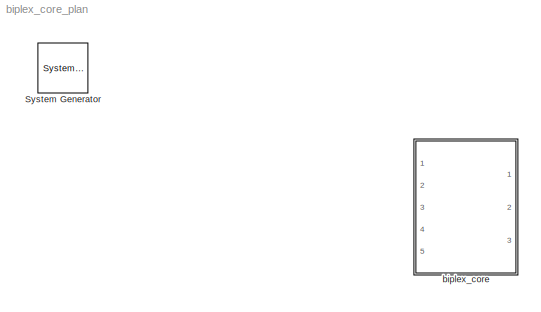
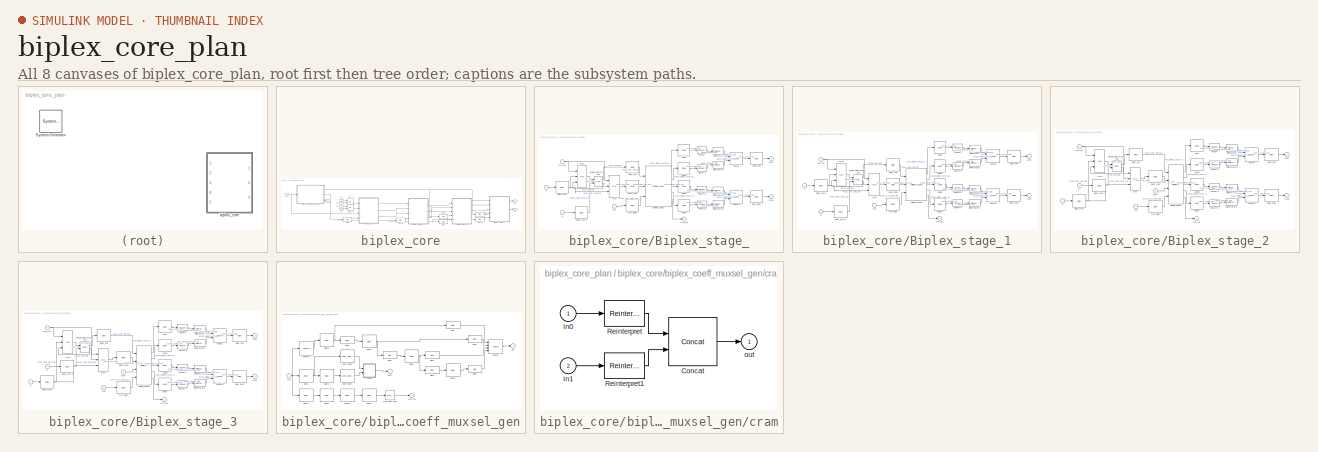
[diagram: thumbnail index - all 8 canvases of the model, root first then tree order]
MODEL biplex_core_plan
KIND model
BLOCK [Reference]  System Generator  REF=xbsIndex_r4/ System Generator
  AttributesFormatString = System\\nGenerator
  FunctionWithSeparateData = off
  GeneratePreprocessorConditionals = off
  Ports = []
  RTWMemSecDataConstants = Inherit from model
  RTWMemSecDataInternal = Inherit from model
  RTWMemSecDataParameters = Inherit from model
  RTWMemSecFuncExecute = Inherit from model
  RTWMemSecFuncInitTerm = Inherit from model
  SID = 1
  ShowPortLabels = FromPortIcon
  SourceBlock = xbsIndex_r4/ System Generator
  SourceType = Xilinx System Generator Block
  SystemSampleTime = -1
  Tag = genX
  UserData = DataTag0
  UserDataPersistent = on
  block_type = sysgen
  clock_wrapper = Clock Enables
  core_generation = According to Block Masks
  dbl_ovrd = According to Block Masks
  dcm_input_clock_period = 10
  deprecated_control = off
  directory = ./netlist
  eval_field = 0
  has_advanced_control = 0
  incr_netlist = off
  infoedit = System Generator
  package = ff1156
  part = xc6vsx315t
  run_coregen = off
  sg_icon_stat = 50,50,0,0,token,white,0,58c5b5770fe5f7c311f53dbc6e73f0f6,right,,[ ],[ ]
  sg_mask_display = fprintf('','COMMENT: begin icon graphics');\npatch([0 50 50 0 0 ],[0 0 50 50 0 ],[1 1 1 ]);\npatch([1.6375 16.81 27.31 37.81 48.31 27.31 12.1375 1.6375 ],[36.655 36.655 47.155 36.655 47.155 47.155 47.155 36.655 ],[0.933333 0.203922 0.141176 ]);\npatch([12.1375 27.31 16.81 1.6375 12.1375 ],[26.155 26.155 36.655 36.655 26.155 ],[0.698039 0.0313725 0.219608 ]);\npatch([1.6375 16.81 27.31 12.1375 1.63...<+335ch>
  sggui_pos = -1,-1,-1,-1
  simulink_period = 1
  speed = -3
  synthesis_tool = XST
  sysclk_period = 10
  testbench = off
  trim_vbits = Everywhere in SubSystem
  xilinxfamily = Virtex6
BLOCK [SubSystem] biplex_core
  FunctionWithSeparateData = off
  MaskHideContents = off
  MinAlgLoopOccurrences = off
  Opaque = off
  Ports = [5, 3]
  PropExecContextOutsideSubsystem = off
  RTWSystemCode = Auto
  RequestExecContextInheritance = off
  SID = 290
BLOCK [SubSystem] biplex_core/Biplex_stage_
  FunctionWithSeparateData = off
  MaskCallbackString = ||||||||
  MaskEnableString = on,on,on,on,on,on,on,on,on
  MaskHideContents = off
  MaskIconFrame = on
  MaskIconOpaque = on
  MaskIconRotate = none
  MaskIconUnits = autoscale
  MaskInitialization = config.source=str2func('biplex_stage_n_draw');\nconfig.toplevel=gcb;\nconfig.debug=0;\nconfig.depend={'biplex_stage_n_draw.m'};\nxBlock(config,{FFTSize, FFTStage, input_bit_width, coeff_bit_width, output_bit_width, delays_bram, bram_latency, shift, delay_arr});  <repeated x4 — deduplicated; at blocks: Biplex_stage_, Biplex_stage_1, Biplex_stage_2, Biplex_stage_3>
  MaskPortRotate = default
  MaskPromptString = FFT Size|FFT Stage|Input Bit Width|Coefficient Bit Width|Output Bit Width|Delays in BRAM|BRAM latency|Downshift in this stage? (0 or 1)|In-Stage Delay Array
  MaskStyleString = edit,edit,edit,edit,edit,edit,edit,edit,edit
  MaskToolTipString = on,on,on,on,on,on,on,on,on
  MaskTunableValueString = on,on,on,on,on,on,on,on,on
  MaskValueString = 4|1|18|18|18|1|2|0|[0,1,0]
  MaskVariables = FFTSize=@1;FFTStage=@2;input_bit_width=@3;coeff_bit_width=@4;output_bit_width=@5;delays_bram=@6;bram_latency=@7;shift=@8;delay_arr=@9;
  MaskVisibilityString = on,on,on,on,on,on,on,on,on
  MinAlgLoopOccurrences = off
  Opaque = off
  Ports = [4, 3]
  PropExecContextOutsideSubsystem = off
  RTWSystemCode = Auto
  RequestExecContextInheritance = off
  SID = 4
  UserData = DataTag1
  UserDataPersistent = on
BLOCK [Reference] biplex_core/Biplex_stage_/Concat  REF=xbsIndex_r4/Concat
  Ports = [2, 1]
  SID = 4:1238
  SourceBlock = xbsIndex_r4/Concat
  SourceType = Xilinx Bus Concatenator Block
  block_type = concat
  dbl_ovrd = off
  has_advanced_control = 0
  infoedit = Concatenates two or more inputs.  Output will be cast to an unsigned value with the binary point at zero.
  num_inputs = 2
  sg_icon_stat = 60,60,2,1,white,blue,0,16398980,right,,[ ],[ ]
  sg_mask_display = fprintf('','COMMENT: begin icon graphics');\npatch([0 60 60 0 0 ],[0 0 60 60 0 ],[0.77 0.82 0.91 ]);\nplot([0 60 60 0 0 ],[0 0 60 60 0 ]);\npatch([12.2 23.76 31.76 39.76 47.76 31.76 20.2 12.2 ],[38.88 38.88 46.88 38.88 46.88 46.88 46.88 38.88 ],[1 1 1 ]);\npatch([20.2 31.76 23.76 12.2 20.2 ],[30.88 30.88 38.88 38.88 30.88 ],[0.931 0.946 0.973 ]);\npatch([12.2 23.76 31.76 20.2 12.2 ],[22.88 22.88 3...<+417ch>  <repeated x9 — deduplicated; at blocks: Concat, Concat1>
  sggui_pos = -1,-1,-1,-1
BLOCK [Reference] biplex_core/Biplex_stage_/Concat1  REF=xbsIndex_r4/Concat
  Ports = [2, 1]
  SID = 4:1239
  SourceBlock = xbsIndex_r4/Concat
  SourceType = Xilinx Bus Concatenator Block
  block_type = concat
  dbl_ovrd = off
  has_advanced_control = 0
  infoedit = Concatenates two or more inputs.  Output will be cast to an unsigned value with the binary point at zero.
  num_inputs = 2
  sg_icon_stat = 60,60,2,1,white,blue,0,16398980,right,,[ ],[ ]
  sggui_pos = -1,-1,-1,-1
BLOCK [Reference] biplex_core/Biplex_stage_/Convert  REF=xbsIndex_r4/Convert
  Ports = [1, 1]
  SID = 4:1240
  SourceBlock = xbsIndex_r4/Convert
  SourceType = Xilinx Type Converter Block
  arith_type = Signed  (2's comp)
  bin_pt = 17
  block_type = convert
  dbl_ovrd = off
  en = off
  has_advanced_control = 0
  infoedit = Hardware notes: rounding and saturating require hardware resources; truncating and wrapping do not.
  latency = 0
  n_bits = 18
  overflow = Wrap
  pipeline = off
  quantization = Truncate
  sg_icon_stat = 45,32,1,1,white,blue,0,edca21da,right,,[ ],[ ]
  sg_mask_display = fprintf('','COMMENT: begin icon graphics');\npatch([0 45 45 0 0 ],[0 0 32 32 0 ],[0.77 0.82 0.91 ]);\nplot([0 45 45 0 0 ],[0 0 32 32 0 ]);\npatch([13.1 18.88 22.88 26.88 30.88 22.88 17.1 13.1 ],[20.44 20.44 24.44 20.44 24.44 24.44 24.44 20.44 ],[1 1 1 ]);\npatch([17.1 22.88 18.88 13.1 17.1 ],[16.44 16.44 20.44 20.44 16.44 ],[0.931 0.946 0.973 ]);\npatch([13.1 18.88 22.88 17.1 13.1 ],[12.44 12.44 1...<+314ch>  <repeated x8 — deduplicated; at blocks: Convert, Convert1>
  sggui_pos = -1,-1,-1,-1
  xl_area = [0,0,0,0,0,0,0]
  xl_use_area = off
BLOCK [Reference] biplex_core/Biplex_stage_/Convert1  REF=xbsIndex_r4/Convert
  Ports = [1, 1]
  SID = 4:1241
  SourceBlock = xbsIndex_r4/Convert
  SourceType = Xilinx Type Converter Block
  arith_type = Signed  (2's comp)
  bin_pt = 17
  block_type = convert
  dbl_ovrd = off
  en = off
  has_advanced_control = 0
  infoedit = Hardware notes: rounding and saturating require hardware resources; truncating and wrapping do not.
  latency = 0
  n_bits = 18
  overflow = Wrap
  pipeline = off
  quantization = Truncate
  sg_icon_stat = 45,32,1,1,white,blue,0,edca21da,right,,[ ],[ ]
  sggui_pos = -1,-1,-1,-1
  xl_area = [0,0,0,0,0,0,0]
  xl_use_area = off
BLOCK [Reference] biplex_core/Biplex_stage_/Convert2  REF=xbsIndex_r4/Convert
  Ports = [1, 1]
  SID = 4:1242
  SourceBlock = xbsIndex_r4/Convert
  SourceType = Xilinx Type Converter Block
  arith_type = Signed  (2's comp)
  bin_pt = 17
  block_type = convert
  dbl_ovrd = off
  en = off
  has_advanced_control = 0
  infoedit = Hardware notes: rounding and saturating require hardware resources; truncating and wrapping do not.
  latency = 0
  n_bits = 18
  overflow = Wrap
  pipeline = off
  quantization = Truncate
  sg_icon_stat = 45,30,1,1,white,blue,0,edca21da,right,,[ ],[ ]
  sg_mask_display = fprintf('','COMMENT: begin icon graphics');\npatch([0 45 45 0 0 ],[0 0 30 30 0 ],[0.77 0.82 0.91 ]);\nplot([0 45 45 0 0 ],[0 0 30 30 0 ]);\npatch([13.1 18.88 22.88 26.88 30.88 22.88 17.1 13.1 ],[19.44 19.44 23.44 19.44 23.44 23.44 23.44 19.44 ],[1 1 1 ]);\npatch([17.1 22.88 18.88 13.1 17.1 ],[15.44 15.44 19.44 19.44 15.44 ],[0.931 0.946 0.973 ]);\npatch([13.1 18.88 22.88 17.1 13.1 ],[11.44 11.44 1...<+314ch>  <repeated x8 — deduplicated; at blocks: Convert2, Convert3>
  sggui_pos = -1,-1,-1,-1
  xl_area = [0,0,0,0,0,0,0]
  xl_use_area = off
BLOCK [Reference] biplex_core/Biplex_stage_/Convert3  REF=xbsIndex_r4/Convert
  Ports = [1, 1]
  SID = 4:1243
  SourceBlock = xbsIndex_r4/Convert
  SourceType = Xilinx Type Converter Block
  arith_type = Signed  (2's comp)
  bin_pt = 17
  block_type = convert
  dbl_ovrd = off
  en = off
  has_advanced_control = 0
  infoedit = Hardware notes: rounding and saturating require hardware resources; truncating and wrapping do not.
  latency = 0
  n_bits = 18
  overflow = Wrap
  pipeline = off
  quantization = Truncate
  sg_icon_stat = 45,30,1,1,white,blue,0,edca21da,right,,[ ],[ ]
  sggui_pos = -1,-1,-1,-1
  xl_area = [0,0,0,0,0,0,0]
  xl_use_area = off
BLOCK [Reference] biplex_core/Biplex_stage_/Mux  REF=xbsIndex_r4/Mux
  Ports = [3, 1]
  SID = 4:1244
  SourceBlock = xbsIndex_r4/Mux
  SourceType = Xilinx Bus Multiplexer Block
  arith_type = Signed  (2's comp)
  bin_pt = 2
  block_type = mux
  dbl_ovrd = off
  en = off
  has_advanced_control = 0
  inputs = 2
  latency = 0
  n_bits = 8
  overflow = Wrap
  precision = Full
  quantization = Truncate
  sg_icon_stat = 50,104,3,1,white,blue,3,eb98d690,right,,[ ],[ ]
  sg_mask_display = fprintf('','COMMENT: begin icon graphics');\npatch([0 50 50 0 0 ],[0 14.8571 89.1429 104 0 ],[0.77 0.82 0.91 ]);\nplot([0 50 50 0 0 ],[0 14.8571 89.1429 104 0 ]);\npatch([9.425 19.54 26.54 33.54 40.54 26.54 16.425 9.425 ],[59.77 59.77 66.77 59.77 66.77 66.77 66.77 59.77 ],[1 1 1 ]);\npatch([16.425 26.54 19.54 9.425 16.425 ],[52.77 52.77 59.77 59.77 52.77 ],[0.931 0.946 0.973 ]);\npatch([9.425 19.5...<+493ch>
  sggui_pos = -1,-1,-1,-1
  xl_area = [0,0,0,0,0,0,0]
  xl_use_area = off
BLOCK [Reference] biplex_core/Biplex_stage_/Mux1  REF=xbsIndex_r4/Mux
  Ports = [3, 1]
  SID = 4:1245
  SourceBlock = xbsIndex_r4/Mux
  SourceType = Xilinx Bus Multiplexer Block
  arith_type = Signed  (2's comp)
  bin_pt = 2
  block_type = mux
  dbl_ovrd = off
  en = off
  has_advanced_control = 0
  inputs = 2
  latency = 0
  n_bits = 8
  overflow = Wrap
  precision = Full
  quantization = Truncate
  sg_icon_stat = 45,104,3,1,white,blue,3,eb98d690,right,,[ ],[ ]
  sg_mask_display = fprintf('','COMMENT: begin icon graphics');\npatch([0 45 45 0 0 ],[0 14.8571 89.1429 104 0 ],[0.77 0.82 0.91 ]);\nplot([0 45 45 0 0 ],[0 14.8571 89.1429 104 0 ]);\npatch([8.65 17.32 23.32 29.32 35.32 23.32 14.65 8.65 ],[58.66 58.66 64.66 58.66 64.66 64.66 64.66 58.66 ],[1 1 1 ]);\npatch([14.65 23.32 17.32 8.65 14.65 ],[52.66 52.66 58.66 58.66 52.66 ],[0.931 0.946 0.973 ]);\npatch([8.65 17.32 23.32...<+481ch>  <repeated x6 — deduplicated; at blocks: Mux1, Mux>
  sggui_pos = -1,-1,-1,-1
  xl_area = [0,0,0,0,0,0,0]
  xl_use_area = off
BLOCK [Reference] biplex_core/Biplex_stage_/Reinterpret  REF=xbsIndex_r4/Reinterpret
  Ports = [1, 1]
  SID = 4:1246
  SourceBlock = xbsIndex_r4/Reinterpret
  SourceType = Xilinx Type Reinterpreter Block
  arith_type = Unsigned
  bin_pt = 0
  block_type = reinterpret
  force_arith_type = off
  force_bin_pt = off
  has_advanced_control = 0
  infoedit = Changes signal type without altering the binary representation.   You can changed the signal between signed and unsigned, and relocate the binary point.<br><br>Hardware notes: In hardware this block costs nothing.<br><br>Example:  Suppose the input is 6 bits wide, signed, with 2 fractional bits, and the output is forced to unsigned with 0 fractional bits.  Then an input of -2.0 (1110.00 in binary ...<+59ch>  <repeated x18 — deduplicated; at blocks: Reinterpret, Reinterpret1, Reinterpret2, Reinterpret3>
  sg_icon_stat = 50,32,1,1,white,blue,0,6b04d0b0,right,,[ ],[ ]
  sg_mask_display = fprintf('','COMMENT: begin icon graphics');\npatch([0 50 50 0 0 ],[0 0 32 32 0 ],[0.77 0.82 0.91 ]);\nplot([0 50 50 0 0 ],[0 0 32 32 0 ]);\npatch([16.1 21.88 25.88 29.88 33.88 25.88 20.1 16.1 ],[20.44 20.44 24.44 20.44 24.44 24.44 24.44 20.44 ],[1 1 1 ]);\npatch([20.1 25.88 21.88 16.1 20.1 ],[16.44 16.44 20.44 20.44 16.44 ],[0.931 0.946 0.973 ]);\npatch([16.1 21.88 25.88 20.1 16.1 ],[12.44 12.44 1...<+306ch>  <repeated x18 — deduplicated; at blocks: Reinterpret, Reinterpret1, Reinterpret2, Reinterpret3>
  sggui_pos = -1,-1,-1,-1
BLOCK [Reference] biplex_core/Biplex_stage_/Reinterpret1  REF=xbsIndex_r4/Reinterpret
  Ports = [1, 1]
  SID = 4:1247
  SourceBlock = xbsIndex_r4/Reinterpret
  SourceType = Xilinx Type Reinterpreter Block
  arith_type = Unsigned
  bin_pt = 0
  block_type = reinterpret
  force_arith_type = off
  force_bin_pt = off
  has_advanced_control = 0
  sg_icon_stat = 50,32,1,1,white,blue,0,6b04d0b0,right,,[ ],[ ]
  sggui_pos = -1,-1,-1,-1
BLOCK [Reference] biplex_core/Biplex_stage_/Reinterpret2  REF=xbsIndex_r4/Reinterpret
  Ports = [1, 1]
  SID = 4:1248
  SourceBlock = xbsIndex_r4/Reinterpret
  SourceType = Xilinx Type Reinterpreter Block
  arith_type = Unsigned
  bin_pt = 0
  block_type = reinterpret
  force_arith_type = off
  force_bin_pt = off
  has_advanced_control = 0
  sg_icon_stat = 50,32,1,1,white,blue,0,6b04d0b0,right,,[ ],[ ]
  sggui_pos = -1,-1,-1,-1
BLOCK [Reference] biplex_core/Biplex_stage_/Reinterpret3  REF=xbsIndex_r4/Reinterpret
  Ports = [1, 1]
  SID = 4:1249
  SourceBlock = xbsIndex_r4/Reinterpret
  SourceType = Xilinx Type Reinterpreter Block
  arith_type = Unsigned
  bin_pt = 0
  block_type = reinterpret
  force_arith_type = off
  force_bin_pt = off
  has_advanced_control = 0
  sg_icon_stat = 50,32,1,1,white,blue,0,6b04d0b0,right,,[ ],[ ]
  sggui_pos = -1,-1,-1,-1
BLOCK [Reference] biplex_core/Biplex_stage_/Scale  REF=xbsIndex_r4/Scale
  Ports = [1, 1]
  SID = 4:1250
  SourceBlock = xbsIndex_r4/Scale
  SourceType = Xilinx Input Scaler Block
  block_type = scale
  dbl_ovrd = off
  has_advanced_control = 0
  infoedit = Scales input by a power of two by adjusting the binary point position.<br><br>Hardware notes: In hardware this block costs nothing.
  scale_factor = -0
  sg_icon_stat = 55,56,1,1,white,blue,0,e7f93c29,right,,[ ],[ ]
  sg_mask_display = fprintf('','COMMENT: begin icon graphics');\npatch([0 55 55 0 0 ],[0 0 56 56 0 ],[0.77 0.82 0.91 ]);\nplot([0 55 55 0 0 ],[0 0 56 56 0 ]);\npatch([11.425 21.54 28.54 35.54 42.54 28.54 18.425 11.425 ],[35.77 35.77 42.77 35.77 42.77 42.77 42.77 35.77 ],[1 1 1 ]);\npatch([18.425 28.54 21.54 11.425 18.425 ],[28.77 28.77 35.77 35.77 28.77 ],[0.931 0.946 0.973 ]);\npatch([11.425 21.54 28.54 18.425 11.42...<+349ch>  <repeated x12 — deduplicated; at blocks: Scale, Scale1, Scale2, Scale3>
  sggui_pos = -1,-1,-1,-1
BLOCK [Reference] biplex_core/Biplex_stage_/Scale1  REF=xbsIndex_r4/Scale
  Ports = [1, 1]
  SID = 4:1251
  SourceBlock = xbsIndex_r4/Scale
  SourceType = Xilinx Input Scaler Block
  block_type = scale
  dbl_ovrd = off
  has_advanced_control = 0
  infoedit = Scales input by a power of two by adjusting the binary point position.<br><br>Hardware notes: In hardware this block costs nothing.
  scale_factor = -0
  sg_icon_stat = 55,56,1,1,white,blue,0,e7f93c29,right,,[ ],[ ]
  sggui_pos = -1,-1,-1,-1
BLOCK [Reference] biplex_core/Biplex_stage_/Scale2  REF=xbsIndex_r4/Scale
  Ports = [1, 1]
  SID = 4:1252
  SourceBlock = xbsIndex_r4/Scale
  SourceType = Xilinx Input Scaler Block
  block_type = scale
  dbl_ovrd = off
  has_advanced_control = 0
  infoedit = Scales input by a power of two by adjusting the binary point position.<br><br>Hardware notes: In hardware this block costs nothing.
  scale_factor = -0
  sg_icon_stat = 55,56,1,1,white,blue,0,e7f93c29,right,,[ ],[ ]
  sggui_pos = -1,-1,-1,-1
BLOCK [Reference] biplex_core/Biplex_stage_/Scale3  REF=xbsIndex_r4/Scale
  Ports = [1, 1]
  SID = 4:1253
  SourceBlock = xbsIndex_r4/Scale
  SourceType = Xilinx Input Scaler Block
  block_type = scale
  dbl_ovrd = off
  has_advanced_control = 0
  infoedit = Scales input by a power of two by adjusting the binary point position.<br><br>Hardware notes: In hardware this block costs nothing.
  scale_factor = -0
  sg_icon_stat = 55,56,1,1,white,blue,0,e7f93c29,right,,[ ],[ ]
  sggui_pos = -1,-1,-1,-1
BLOCK [Inport] biplex_core/Biplex_stage_/a
  IconDisplay = Port number
  SID = 4:1234
BLOCK [Outport] biplex_core/Biplex_stage_/a+bw
  IconDisplay = Port number
  SID = 4:1263
BLOCK [Outport] biplex_core/Biplex_stage_/a-bw
  IconDisplay = Port number
  Port = 2
  SID = 4:1264
BLOCK [Inport] biplex_core/Biplex_stage_/b
  IconDisplay = Port number
  Port = 2
  SID = 4:1235
BLOCK [Reference] biplex_core/Biplex_stage_/delay_end  REF=xbsIndex_r4/Delay
  Ports = [1, 1]
  SID = 4:1254
  SourceBlock = xbsIndex_r4/Delay
  SourceType = Xilinx Delay Block
  block_type = delay
  dbl_ovrd = off
  en = off
  has_advanced_control = 0
  infoedit = Hardware notes: A delay line is a chain, each link of which is an SRL16 followed by a flip-flop.
  latency = 0
  reg_retiming = off
  sg_icon_stat = 60,56,1,1,white,blue,0,24450e6f,right,,[ ],[ ]
  sg_mask_display = fprintf('','COMMENT: begin icon graphics');\npatch([0 60 60 0 0 ],[0 0 56 56 0 ],[0.77 0.82 0.91 ]);\nplot([0 60 60 0 0 ],[0 0 56 56 0 ]);\npatch([12.2 23.76 31.76 39.76 47.76 31.76 20.2 12.2 ],[36.88 36.88 44.88 36.88 44.88 44.88 44.88 36.88 ],[1 1 1 ]);\npatch([20.2 31.76 23.76 12.2 20.2 ],[28.88 28.88 36.88 36.88 28.88 ],[0.931 0.946 0.973 ]);\npatch([12.2 23.76 31.76 20.2 12.2 ],[20.88 20.88 2...<+320ch>  <repeated x37 — deduplicated; at blocks: delay_end, delay_end1, delay_mid, delay_mid1, delay_start, delay_start1, sync_delay, Delay1, Delay2, Delay3, Delay4, Delay5, Delay6, Delay7, Delay8, Delay9>
  sggui_pos = -1,-1,-1,-1
  xl_area = [0,0,0,0,0,0,0]
  xl_use_area = off
BLOCK [Reference] biplex_core/Biplex_stage_/delay_end1  REF=xbsIndex_r4/Delay
  Ports = [1, 1]
  SID = 4:1255
  SourceBlock = xbsIndex_r4/Delay
  SourceType = Xilinx Delay Block
  block_type = delay
  dbl_ovrd = off
  en = off
  has_advanced_control = 0
  infoedit = Hardware notes: A delay line is a chain, each link of which is an SRL16 followed by a flip-flop.
  latency = 0
  reg_retiming = off
  sg_icon_stat = 60,56,1,1,white,blue,0,24450e6f,right,,[ ],[ ]
  sggui_pos = -1,-1,-1,-1
  xl_area = [0,0,0,0,0,0,0]
  xl_use_area = off
BLOCK [Reference] biplex_core/Biplex_stage_/delay_mid  REF=xbsIndex_r4/Delay
  Ports = [1, 1]
  SID = 4:1256
  SourceBlock = xbsIndex_r4/Delay
  SourceType = Xilinx Delay Block
  block_type = delay
  dbl_ovrd = off
  en = off
  has_advanced_control = 0
  infoedit = Hardware notes: A delay line is a chain, each link of which is an SRL16 followed by a flip-flop.
  latency = 2
  reg_retiming = off
  sg_icon_stat = 60,56,1,1,white,blue,0,85ce9542,right,,[ ],[ ]
  sggui_pos = -1,-1,-1,-1
  xl_area = [0,0,0,0,0,0,0]
  xl_use_area = off
BLOCK [Reference] biplex_core/Biplex_stage_/delay_mid1  REF=xbsIndex_r4/Delay
  Ports = [1, 1]
  SID = 4:1257
  SourceBlock = xbsIndex_r4/Delay
  SourceType = Xilinx Delay Block
  block_type = delay
  dbl_ovrd = off
  en = off
  has_advanced_control = 0
  infoedit = Hardware notes: A delay line is a chain, each link of which is an SRL16 followed by a flip-flop.
  latency = 1
  reg_retiming = off
  sg_icon_stat = 60,56,1,1,white,blue,0,07b98262,right,,[ ],[ ]
  sggui_pos = -1,-1,-1,-1
  xl_area = [0,0,0,0,0,0,0]
  xl_use_area = off
BLOCK [Reference] biplex_core/Biplex_stage_/delay_start  REF=xbsIndex_r4/Delay
  Ports = [1, 1]
  SID = 4:1258
  SourceBlock = xbsIndex_r4/Delay
  SourceType = Xilinx Delay Block
  block_type = delay
  dbl_ovrd = off
  en = off
  has_advanced_control = 0
  infoedit = Hardware notes: A delay line is a chain, each link of which is an SRL16 followed by a flip-flop.
  latency = 0
  reg_retiming = off
  sg_icon_stat = 60,56,1,1,white,blue,0,24450e6f,right,,[ ],[ ]
  sggui_pos = -1,-1,-1,-1
  xl_area = [0,0,0,0,0,0,0]
  xl_use_area = off
BLOCK [Reference] biplex_core/Biplex_stage_/delay_start1  REF=xbsIndex_r4/Delay
  Ports = [1, 1]
  SID = 4:1259
  SourceBlock = xbsIndex_r4/Delay
  SourceType = Xilinx Delay Block
  block_type = delay
  dbl_ovrd = off
  en = off
  has_advanced_control = 0
  infoedit = Hardware notes: A delay line is a chain, each link of which is an SRL16 followed by a flip-flop.
  latency = 0
  reg_retiming = off
  sg_icon_stat = 60,56,1,1,white,blue,0,24450e6f,right,,[ ],[ ]
  sggui_pos = -1,-1,-1,-1
  xl_area = [0,0,0,0,0,0,0]
  xl_use_area = off
BLOCK [Reference] biplex_core/Biplex_stage_/double_delay_bram_fast  REF=monroe_library/double_delay_bram_fast  (lib defined in mdl_6e3ec1066caf, mdl_8e463b7c25be, +1 more)
  FunctionWithSeparateData = off
  GeneratePreprocessorConditionals = off
  Ports = [2, 2]
  RTWMemSecDataConstants = Inherit from model
  RTWMemSecDataInternal = Inherit from model
  RTWMemSecDataParameters = Inherit from model
  RTWMemSecFuncExecute = Inherit from model
  RTWMemSecFuncInitTerm = Inherit from model
  SID = 4:1260
  ShowPortLabels = FromPortIcon
  SourceBlock = monroe_library/double_delay_bram_fast
  SystemSampleTime = -1
  bram_latency = 2
  delay_len = 8
BLOCK [Inport] biplex_core/Biplex_stage_/mux_sel
  IconDisplay = Port number
  Port = 4
  SID = 4:1237
BLOCK [Inport] biplex_core/Biplex_stage_/sync
  IconDisplay = Port number
  Port = 3
  SID = 4:1236
BLOCK [Reference] biplex_core/Biplex_stage_/sync_delay  REF=xbsIndex_r4/Delay
  Ports = [1, 1]
  SID = 4:1261
  SourceBlock = xbsIndex_r4/Delay
  SourceType = Xilinx Delay Block
  block_type = delay
  dbl_ovrd = off
  en = off
  has_advanced_control = 0
  infoedit = Hardware notes: A delay line is a chain, each link of which is an SRL16 followed by a flip-flop.
  latency = 8
  reg_retiming = off
  sg_icon_stat = 60,56,1,1,white,blue,0,e47f993a,right,,[ ],[ ]
  sggui_pos = -1,-1,-1,-1
  xl_area = [0,0,0,0,0,0,0]
  xl_use_area = off
BLOCK [Outport] biplex_core/Biplex_stage_/sync_out
  IconDisplay = Port number
  Port = 3
  SID = 4:1265
BLOCK [Reference] biplex_core/Biplex_stage_/twiddle_stage1  REF=monroe_library/twiddle_stage1  (lib defined in mdl_6e3ec1066caf, mdl_8e463b7c25be, +1 more)
  FunctionWithSeparateData = off
  GeneratePreprocessorConditionals = off
  Ports = [3, 5]
  RTWMemSecDataConstants = Inherit from model
  RTWMemSecDataInternal = Inherit from model
  RTWMemSecDataParameters = Inherit from model
  RTWMemSecFuncExecute = Inherit from model
  RTWMemSecFuncInitTerm = Inherit from model
  SID = 4:1262
  ShowPortLabels = FromPortIcon
  SourceBlock = monroe_library/twiddle_stage1
  SourceType = twiddle_pass_through
  SystemSampleTime = -1
  input_bit_width = 18
BLOCK [SubSystem] biplex_core/Biplex_stage_1
  FunctionWithSeparateData = off
  MaskCallbackString = ||||||||
  MaskEnableString = on,on,on,on,on,on,on,on,on
  MaskHideContents = off
  MaskIconFrame = on
  MaskIconOpaque = on
  MaskIconRotate = none
  MaskIconUnits = autoscale
  MaskPortRotate = default
  MaskPromptString = FFT Size|FFT Stage|Input Bit Width|Coefficient Bit Width|Output Bit Width|Delays in BRAM|BRAM latency|Downshift in this stage? (0 or 1)|In-Stage Delay Array
  MaskStyleString = edit,edit,edit,edit,edit,edit,edit,edit,edit
  MaskToolTipString = on,on,on,on,on,on,on,on,on
  MaskTunableValueString = on,on,on,on,on,on,on,on,on
  MaskValueString = 4|2|18|18|18|1|2|0|[0,1,0]
  MaskVariables = FFTSize=@1;FFTStage=@2;input_bit_width=@3;coeff_bit_width=@4;output_bit_width=@5;delays_bram=@6;bram_latency=@7;shift=@8;delay_arr=@9;
  MaskVisibilityString = on,on,on,on,on,on,on,on,on
  MinAlgLoopOccurrences = off
  Opaque = off
  Ports = [4, 3]
  PropExecContextOutsideSubsystem = off
  RTWSystemCode = Auto
  RequestExecContextInheritance = off
  SID = 8
  UserData = DataTag2
  UserDataPersistent = on
BLOCK [Reference] biplex_core/Biplex_stage_1/Concat  REF=xbsIndex_r4/Concat
  Ports = [2, 1]
  SID = 157
  SourceBlock = xbsIndex_r4/Concat
  SourceType = Xilinx Bus Concatenator Block
  block_type = concat
  dbl_ovrd = off
  has_advanced_control = 0
  infoedit = Concatenates two or more inputs.  Output will be cast to an unsigned value with the binary point at zero.
  num_inputs = 2
  sg_icon_stat = 60,60,2,1,white,blue,0,16398980,right,,[ ],[ ]
  sggui_pos = -1,-1,-1,-1
BLOCK [Reference] biplex_core/Biplex_stage_1/Concat1  REF=xbsIndex_r4/Concat
  Ports = [2, 1]
  SID = 158
  SourceBlock = xbsIndex_r4/Concat
  SourceType = Xilinx Bus Concatenator Block
  block_type = concat
  dbl_ovrd = off
  has_advanced_control = 0
  infoedit = Concatenates two or more inputs.  Output will be cast to an unsigned value with the binary point at zero.
  num_inputs = 2
  sg_icon_stat = 60,60,2,1,white,blue,0,16398980,right,,[ ],[ ]
  sggui_pos = -1,-1,-1,-1
BLOCK [Reference] biplex_core/Biplex_stage_1/Convert  REF=xbsIndex_r4/Convert
  Ports = [1, 1]
  SID = 159
  SourceBlock = xbsIndex_r4/Convert
  SourceType = Xilinx Type Converter Block
  arith_type = Signed  (2's comp)
  bin_pt = 17
  block_type = convert
  dbl_ovrd = off
  en = off
  has_advanced_control = 0
  infoedit = Hardware notes: rounding and saturating require hardware resources; truncating and wrapping do not.
  latency = 0
  n_bits = 18
  overflow = Wrap
  pipeline = off
  quantization = Truncate
  sg_icon_stat = 45,32,1,1,white,blue,0,edca21da,right,,[ ],[ ]
  sggui_pos = -1,-1,-1,-1
  xl_area = [0,0,0,0,0,0,0]
  xl_use_area = off
BLOCK [Reference] biplex_core/Biplex_stage_1/Convert1  REF=xbsIndex_r4/Convert
  Ports = [1, 1]
  SID = 160
  SourceBlock = xbsIndex_r4/Convert
  SourceType = Xilinx Type Converter Block
  arith_type = Signed  (2's comp)
  bin_pt = 17
  block_type = convert
  dbl_ovrd = off
  en = off
  has_advanced_control = 0
  infoedit = Hardware notes: rounding and saturating require hardware resources; truncating and wrapping do not.
  latency = 0
  n_bits = 18
  overflow = Wrap
  pipeline = off
  quantization = Truncate
  sg_icon_stat = 45,32,1,1,white,blue,0,edca21da,right,,[ ],[ ]
  sggui_pos = -1,-1,-1,-1
  xl_area = [0,0,0,0,0,0,0]
  xl_use_area = off
BLOCK [Reference] biplex_core/Biplex_stage_1/Convert2  REF=xbsIndex_r4/Convert
  Ports = [1, 1]
  SID = 161
  SourceBlock = xbsIndex_r4/Convert
  SourceType = Xilinx Type Converter Block
  arith_type = Signed  (2's comp)
  bin_pt = 17
  block_type = convert
  dbl_ovrd = off
  en = off
  has_advanced_control = 0
  infoedit = Hardware notes: rounding and saturating require hardware resources; truncating and wrapping do not.
  latency = 0
  n_bits = 18
  overflow = Wrap
  pipeline = off
  quantization = Truncate
  sg_icon_stat = 45,30,1,1,white,blue,0,edca21da,right,,[ ],[ ]
  sggui_pos = -1,-1,-1,-1
  xl_area = [0,0,0,0,0,0,0]
  xl_use_area = off
BLOCK [Reference] biplex_core/Biplex_stage_1/Convert3  REF=xbsIndex_r4/Convert
  Ports = [1, 1]
  SID = 162
  SourceBlock = xbsIndex_r4/Convert
  SourceType = Xilinx Type Converter Block
  arith_type = Signed  (2's comp)
  bin_pt = 17
  block_type = convert
  dbl_ovrd = off
  en = off
  has_advanced_control = 0
  infoedit = Hardware notes: rounding and saturating require hardware resources; truncating and wrapping do not.
  latency = 0
  n_bits = 18
  overflow = Wrap
  pipeline = off
  quantization = Truncate
  sg_icon_stat = 45,30,1,1,white,blue,0,edca21da,right,,[ ],[ ]
  sggui_pos = -1,-1,-1,-1
  xl_area = [0,0,0,0,0,0,0]
  xl_use_area = off
BLOCK [Reference] biplex_core/Biplex_stage_1/Mux  REF=xbsIndex_r4/Mux
  Ports = [3, 1]
  SID = 163
  SourceBlock = xbsIndex_r4/Mux
  SourceType = Xilinx Bus Multiplexer Block
  arith_type = Signed  (2's comp)
  bin_pt = 2
  block_type = mux
  dbl_ovrd = off
  en = off
  has_advanced_control = 0
  inputs = 2
  latency = 0
  n_bits = 8
  overflow = Wrap
  precision = Full
  quantization = Truncate
  sg_icon_stat = 50,104,3,1,white,blue,3,eb98d690,right,,[ ],[ ]
  sg_mask_display = fprintf('','COMMENT: begin icon graphics');\npatch([0 50 50 0 0 ],[0 14.8571 89.1429 104 0 ],[0.77 0.82 0.91 ]);\nplot([0 50 50 0 0 ],[0 14.8571 89.1429 104 0 ]);\npatch([9.425 19.54 26.54 33.54 40.54 26.54 16.425 9.425 ],[59.77 59.77 66.77 59.77 66.77 66.77 66.77 59.77 ],[1 1 1 ]);\npatch([16.425 26.54 19.54 9.425 16.425 ],[52.77 52.77 59.77 59.77 52.77 ],[0.931 0.946 0.973 ]);\npatch([9.425 19.5...<+493ch>
  sggui_pos = -1,-1,-1,-1
  xl_area = [0,0,0,0,0,0,0]
  xl_use_area = off
BLOCK [Reference] biplex_core/Biplex_stage_1/Mux1  REF=xbsIndex_r4/Mux
  Ports = [3, 1]
  SID = 164
  SourceBlock = xbsIndex_r4/Mux
  SourceType = Xilinx Bus Multiplexer Block
  arith_type = Signed  (2's comp)
  bin_pt = 2
  block_type = mux
  dbl_ovrd = off
  en = off
  has_advanced_control = 0
  inputs = 2
  latency = 0
  n_bits = 8
  overflow = Wrap
  precision = Full
  quantization = Truncate
  sg_icon_stat = 45,104,3,1,white,blue,3,eb98d690,right,,[ ],[ ]
  sggui_pos = -1,-1,-1,-1
  xl_area = [0,0,0,0,0,0,0]
  xl_use_area = off
BLOCK [Reference] biplex_core/Biplex_stage_1/Reinterpret  REF=xbsIndex_r4/Reinterpret
  Ports = [1, 1]
  SID = 165
  SourceBlock = xbsIndex_r4/Reinterpret
  SourceType = Xilinx Type Reinterpreter Block
  arith_type = Unsigned
  bin_pt = 0
  block_type = reinterpret
  force_arith_type = off
  force_bin_pt = off
  has_advanced_control = 0
  sg_icon_stat = 50,32,1,1,white,blue,0,6b04d0b0,right,,[ ],[ ]
  sggui_pos = -1,-1,-1,-1
BLOCK [Reference] biplex_core/Biplex_stage_1/Reinterpret1  REF=xbsIndex_r4/Reinterpret
  Ports = [1, 1]
  SID = 166
  SourceBlock = xbsIndex_r4/Reinterpret
  SourceType = Xilinx Type Reinterpreter Block
  arith_type = Unsigned
  bin_pt = 0
  block_type = reinterpret
  force_arith_type = off
  force_bin_pt = off
  has_advanced_control = 0
  sg_icon_stat = 50,32,1,1,white,blue,0,6b04d0b0,right,,[ ],[ ]
  sggui_pos = -1,-1,-1,-1
BLOCK [Reference] biplex_core/Biplex_stage_1/Reinterpret2  REF=xbsIndex_r4/Reinterpret
  Ports = [1, 1]
  SID = 167
  SourceBlock = xbsIndex_r4/Reinterpret
  SourceType = Xilinx Type Reinterpreter Block
  arith_type = Unsigned
  bin_pt = 0
  block_type = reinterpret
  force_arith_type = off
  force_bin_pt = off
  has_advanced_control = 0
  sg_icon_stat = 50,32,1,1,white,blue,0,6b04d0b0,right,,[ ],[ ]
  sggui_pos = -1,-1,-1,-1
BLOCK [Reference] biplex_core/Biplex_stage_1/Reinterpret3  REF=xbsIndex_r4/Reinterpret
  Ports = [1, 1]
  SID = 168
  SourceBlock = xbsIndex_r4/Reinterpret
  SourceType = Xilinx Type Reinterpreter Block
  arith_type = Unsigned
  bin_pt = 0
  block_type = reinterpret
  force_arith_type = off
  force_bin_pt = off
  has_advanced_control = 0
  sg_icon_stat = 50,32,1,1,white,blue,0,6b04d0b0,right,,[ ],[ ]
  sggui_pos = -1,-1,-1,-1
BLOCK [Reference] biplex_core/Biplex_stage_1/Scale  REF=xbsIndex_r4/Scale
  Ports = [1, 1]
  SID = 169
  SourceBlock = xbsIndex_r4/Scale
  SourceType = Xilinx Input Scaler Block
  block_type = scale
  dbl_ovrd = off
  has_advanced_control = 0
  infoedit = Scales input by a power of two by adjusting the binary point position.<br><br>Hardware notes: In hardware this block costs nothing.
  scale_factor = -0
  sg_icon_stat = 50,56,1,1,white,blue,0,e7f93c29,right,,[ ],[ ]
  sg_mask_display = fprintf('','COMMENT: begin icon graphics');\npatch([0 50 50 0 0 ],[0 0 56 56 0 ],[0.77 0.82 0.91 ]);\nplot([0 50 50 0 0 ],[0 0 56 56 0 ]);\npatch([9.425 19.54 26.54 33.54 40.54 26.54 16.425 9.425 ],[35.77 35.77 42.77 35.77 42.77 42.77 42.77 35.77 ],[1 1 1 ]);\npatch([16.425 26.54 19.54 9.425 16.425 ],[28.77 28.77 35.77 35.77 28.77 ],[0.931 0.946 0.973 ]);\npatch([9.425 19.54 26.54 16.425 9.425 ],[...<+343ch>  <repeated x4 — deduplicated; at blocks: Scale, Scale1, Scale2, Scale3>
  sggui_pos = -1,-1,-1,-1
BLOCK [Reference] biplex_core/Biplex_stage_1/Scale1  REF=xbsIndex_r4/Scale
  Ports = [1, 1]
  SID = 170
  SourceBlock = xbsIndex_r4/Scale
  SourceType = Xilinx Input Scaler Block
  block_type = scale
  dbl_ovrd = off
  has_advanced_control = 0
  infoedit = Scales input by a power of two by adjusting the binary point position.<br><br>Hardware notes: In hardware this block costs nothing.
  scale_factor = -0
  sg_icon_stat = 50,56,1,1,white,blue,0,e7f93c29,right,,[ ],[ ]
  sggui_pos = -1,-1,-1,-1
BLOCK [Reference] biplex_core/Biplex_stage_1/Scale2  REF=xbsIndex_r4/Scale
  Ports = [1, 1]
  SID = 171
  SourceBlock = xbsIndex_r4/Scale
  SourceType = Xilinx Input Scaler Block
  block_type = scale
  dbl_ovrd = off
  has_advanced_control = 0
  infoedit = Scales input by a power of two by adjusting the binary point position.<br><br>Hardware notes: In hardware this block costs nothing.
  scale_factor = -0
  sg_icon_stat = 50,56,1,1,white,blue,0,e7f93c29,right,,[ ],[ ]
  sggui_pos = -1,-1,-1,-1
BLOCK [Reference] biplex_core/Biplex_stage_1/Scale3  REF=xbsIndex_r4/Scale
  Ports = [1, 1]
  SID = 172
  SourceBlock = xbsIndex_r4/Scale
  SourceType = Xilinx Input Scaler Block
  block_type = scale
  dbl_ovrd = off
  has_advanced_control = 0
  infoedit = Scales input by a power of two by adjusting the binary point position.<br><br>Hardware notes: In hardware this block costs nothing.
  scale_factor = -0
  sg_icon_stat = 50,56,1,1,white,blue,0,e7f93c29,right,,[ ],[ ]
  sggui_pos = -1,-1,-1,-1
BLOCK [Inport] biplex_core/Biplex_stage_1/a
  IconDisplay = Port number
  SID = 9
BLOCK [Outport] biplex_core/Biplex_stage_1/a+bw
  IconDisplay = Port number
  SID = 38
BLOCK [Outport] biplex_core/Biplex_stage_1/a-bw
  IconDisplay = Port number
  Port = 2
  SID = 39
BLOCK [Inport] biplex_core/Biplex_stage_1/b
  IconDisplay = Port number
  Port = 2
  SID = 10
BLOCK [Reference] biplex_core/Biplex_stage_1/delay_end  REF=xbsIndex_r4/Delay
  Ports = [1, 1]
  SID = 174
  SourceBlock = xbsIndex_r4/Delay
  SourceType = Xilinx Delay Block
  block_type = delay
  dbl_ovrd = off
  en = off
  has_advanced_control = 0
  infoedit = Hardware notes: A delay line is a chain, each link of which is an SRL16 followed by a flip-flop.
  latency = 0
  reg_retiming = off
  sg_icon_stat = 60,56,1,1,white,blue,0,24450e6f,right,,[ ],[ ]
  sggui_pos = -1,-1,-1,-1
  xl_area = [0,0,0,0,0,0,0]
  xl_use_area = off
BLOCK [Reference] biplex_core/Biplex_stage_1/delay_end1  REF=xbsIndex_r4/Delay
  Ports = [1, 1]
  SID = 175
  SourceBlock = xbsIndex_r4/Delay
  SourceType = Xilinx Delay Block
  block_type = delay
  dbl_ovrd = off
  en = off
  has_advanced_control = 0
  infoedit = Hardware notes: A delay line is a chain, each link of which is an SRL16 followed by a flip-flop.
  latency = 0
  reg_retiming = off
  sg_icon_stat = 60,56,1,1,white,blue,0,24450e6f,right,,[ ],[ ]
  sggui_pos = -1,-1,-1,-1
  xl_area = [0,0,0,0,0,0,0]
  xl_use_area = off
BLOCK [Reference] biplex_core/Biplex_stage_1/delay_mid  REF=xbsIndex_r4/Delay
  Ports = [1, 1]
  SID = 176
  SourceBlock = xbsIndex_r4/Delay
  SourceType = Xilinx Delay Block
  block_type = delay
  dbl_ovrd = off
  en = off
  has_advanced_control = 0
  infoedit = Hardware notes: A delay line is a chain, each link of which is an SRL16 followed by a flip-flop.
  latency = 2
  reg_retiming = off
  sg_icon_stat = 60,56,1,1,white,blue,0,85ce9542,right,,[ ],[ ]
  sggui_pos = -1,-1,-1,-1
  xl_area = [0,0,0,0,0,0,0]
  xl_use_area = off
BLOCK [Reference] biplex_core/Biplex_stage_1/delay_mid1  REF=xbsIndex_r4/Delay
  Ports = [1, 1]
  SID = 177
  SourceBlock = xbsIndex_r4/Delay
  SourceType = Xilinx Delay Block
  block_type = delay
  dbl_ovrd = off
  en = off
  has_advanced_control = 0
  infoedit = Hardware notes: A delay line is a chain, each link of which is an SRL16 followed by a flip-flop.
  latency = 1
  reg_retiming = off
  sg_icon_stat = 60,56,1,1,white,blue,0,07b98262,right,,[ ],[ ]
  sggui_pos = -1,-1,-1,-1
  xl_area = [0,0,0,0,0,0,0]
  xl_use_area = off
BLOCK [Reference] biplex_core/Biplex_stage_1/delay_start  REF=xbsIndex_r4/Delay
  Ports = [1, 1]
  SID = 178
  SourceBlock = xbsIndex_r4/Delay
  SourceType = Xilinx Delay Block
  block_type = delay
  dbl_ovrd = off
  en = off
  has_advanced_control = 0
  infoedit = Hardware notes: A delay line is a chain, each link of which is an SRL16 followed by a flip-flop.
  latency = 0
  reg_retiming = off
  sg_icon_stat = 60,56,1,1,white,blue,0,24450e6f,right,,[ ],[ ]
  sggui_pos = -1,-1,-1,-1
  xl_area = [0,0,0,0,0,0,0]
  xl_use_area = off
BLOCK [Reference] biplex_core/Biplex_stage_1/delay_start1  REF=xbsIndex_r4/Delay
  Ports = [1, 1]
  SID = 179
  SourceBlock = xbsIndex_r4/Delay
  SourceType = Xilinx Delay Block
  block_type = delay
  dbl_ovrd = off
  en = off
  has_advanced_control = 0
  infoedit = Hardware notes: A delay line is a chain, each link of which is an SRL16 followed by a flip-flop.
  latency = 0
  reg_retiming = off
  sg_icon_stat = 60,56,1,1,white,blue,0,24450e6f,right,,[ ],[ ]
  sggui_pos = -1,-1,-1,-1
  xl_area = [0,0,0,0,0,0,0]
  xl_use_area = off
BLOCK [Reference] biplex_core/Biplex_stage_1/double_delay_bram_fast  REF=monroe_library/double_delay_bram_fast  (lib defined in mdl_6e3ec1066caf, mdl_8e463b7c25be, +1 more)
  FunctionWithSeparateData = off
  GeneratePreprocessorConditionals = off
  Ports = [2, 2]
  RTWMemSecDataConstants = Inherit from model
  RTWMemSecDataInternal = Inherit from model
  RTWMemSecDataParameters = Inherit from model
  RTWMemSecFuncExecute = Inherit from model
  RTWMemSecFuncInitTerm = Inherit from model
  SID = 173
  ShowPortLabels = FromPortIcon
  SourceBlock = monroe_library/double_delay_bram_fast
  SystemSampleTime = -1
  bram_latency = 2
  delay_len = 4
BLOCK [Inport] biplex_core/Biplex_stage_1/mux_sel
  IconDisplay = Port number
  Port = 4
  SID = 11
BLOCK [Inport] biplex_core/Biplex_stage_1/sync
  IconDisplay = Port number
  Port = 3
  SID = 12
BLOCK [Reference] biplex_core/Biplex_stage_1/sync_delay  REF=xbsIndex_r4/Delay
  Ports = [1, 1]
  SID = 180
  SourceBlock = xbsIndex_r4/Delay
  SourceType = Xilinx Delay Block
  block_type = delay
  dbl_ovrd = off
  en = off
  has_advanced_control = 0
  infoedit = Hardware notes: A delay line is a chain, each link of which is an SRL16 followed by a flip-flop.
  latency = 4
  reg_retiming = off
  sg_icon_stat = 60,56,1,1,white,blue,0,d390c2d8,right,,[ ],[ ]
  sggui_pos = -1,-1,-1,-1
  xl_area = [0,0,0,0,0,0,0]
  xl_use_area = off
BLOCK [Outport] biplex_core/Biplex_stage_1/sync_out
  IconDisplay = Port number
  Port = 3
  SID = 40
BLOCK [Reference] biplex_core/Biplex_stage_1/twiddle_stage2  REF=monroe_library/twiddle_stage2  (lib defined in mdl_6e3ec1066caf, mdl_8e463b7c25be, +1 more)
  FFTSize = 4
  FunctionWithSeparateData = off
  GeneratePreprocessorConditionals = off
  Ports = [3, 5]
  RTWMemSecDataConstants = Inherit from model
  RTWMemSecDataInternal = Inherit from model
  RTWMemSecDataParameters = Inherit from model
  RTWMemSecFuncExecute = Inherit from model
  RTWMemSecFuncInitTerm = Inherit from model
  SID = 181
  ShowPortLabels = FromPortIcon
  SourceBlock = monroe_library/twiddle_stage2
  SourceType = twiddle_pass_through
  SystemSampleTime = -1
  input_bit_width = 18
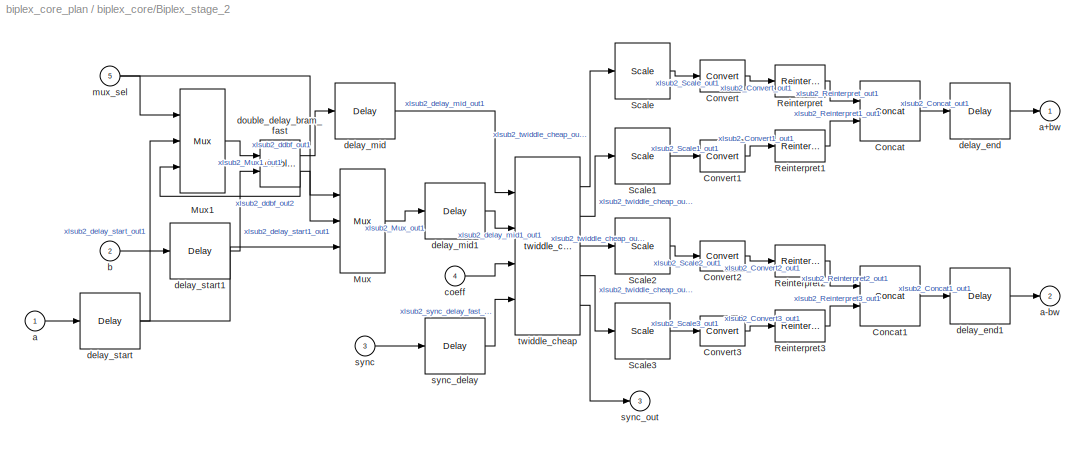
BLOCK [SubSystem] biplex_core/Biplex_stage_2
  FunctionWithSeparateData = off
  MaskCallbackString = ||||||||
  MaskEnableString = on,on,on,on,on,on,on,on,on
  MaskHideContents = off
  MaskIconFrame = on
  MaskIconOpaque = on
  MaskIconRotate = none
  MaskIconUnits = autoscale
  MaskPortRotate = default
  MaskPromptString = FFT Size|FFT Stage|Input Bit Width|Coefficient Bit Width|Output Bit Width|Delays in BRAM|BRAM latency|Downshift in this stage? (0 or 1)|In-Stage Delay Array
  MaskStyleString = edit,edit,edit,edit,edit,edit,edit,edit,edit
  MaskToolTipString = on,on,on,on,on,on,on,on,on
  MaskTunableValueString = on,on,on,on,on,on,on,on,on
  MaskValueString = 4|3|18|18|18|1|2|0|[0,1,0]
  MaskVariables = FFTSize=@1;FFTStage=@2;input_bit_width=@3;coeff_bit_width=@4;output_bit_width=@5;delays_bram=@6;bram_latency=@7;shift=@8;delay_arr=@9;
  MaskVisibilityString = on,on,on,on,on,on,on,on,on
  MinAlgLoopOccurrences = off
  Opaque = off
  Ports = [5, 3]
  PropExecContextOutsideSubsystem = off
  RTWSystemCode = Auto
  RequestExecContextInheritance = off
  SID = 91
  UserData = DataTag3
  UserDataPersistent = on
BLOCK [Reference] biplex_core/Biplex_stage_2/Concat  REF=xbsIndex_r4/Concat
  Ports = [2, 1]
  SID = 233
  SourceBlock = xbsIndex_r4/Concat
  SourceType = Xilinx Bus Concatenator Block
  block_type = concat
  dbl_ovrd = off
  has_advanced_control = 0
  infoedit = Concatenates two or more inputs.  Output will be cast to an unsigned value with the binary point at zero.
  num_inputs = 2
  sg_icon_stat = 60,60,2,1,white,blue,0,16398980,right,,[ ],[ ]
  sggui_pos = -1,-1,-1,-1
BLOCK [Reference] biplex_core/Biplex_stage_2/Concat1  REF=xbsIndex_r4/Concat
  Ports = [2, 1]
  SID = 234
  SourceBlock = xbsIndex_r4/Concat
  SourceType = Xilinx Bus Concatenator Block
  block_type = concat
  dbl_ovrd = off
  has_advanced_control = 0
  infoedit = Concatenates two or more inputs.  Output will be cast to an unsigned value with the binary point at zero.
  num_inputs = 2
  sg_icon_stat = 60,60,2,1,white,blue,0,16398980,right,,[ ],[ ]
  sggui_pos = -1,-1,-1,-1
BLOCK [Reference] biplex_core/Biplex_stage_2/Convert  REF=xbsIndex_r4/Convert
  Ports = [1, 1]
  SID = 235
  SourceBlock = xbsIndex_r4/Convert
  SourceType = Xilinx Type Converter Block
  arith_type = Signed  (2's comp)
  bin_pt = 17
  block_type = convert
  dbl_ovrd = off
  en = off
  has_advanced_control = 0
  infoedit = Hardware notes: rounding and saturating require hardware resources; truncating and wrapping do not.
  latency = 0
  n_bits = 18
  overflow = Wrap
  pipeline = off
  quantization = Truncate
  sg_icon_stat = 45,32,1,1,white,blue,0,edca21da,right,,[ ],[ ]
  sggui_pos = -1,-1,-1,-1
  xl_area = [0,0,0,0,0,0,0]
  xl_use_area = off
BLOCK [Reference] biplex_core/Biplex_stage_2/Convert1  REF=xbsIndex_r4/Convert
  Ports = [1, 1]
  SID = 236
  SourceBlock = xbsIndex_r4/Convert
  SourceType = Xilinx Type Converter Block
  arith_type = Signed  (2's comp)
  bin_pt = 17
  block_type = convert
  dbl_ovrd = off
  en = off
  has_advanced_control = 0
  infoedit = Hardware notes: rounding and saturating require hardware resources; truncating and wrapping do not.
  latency = 0
  n_bits = 18
  overflow = Wrap
  pipeline = off
  quantization = Truncate
  sg_icon_stat = 45,32,1,1,white,blue,0,edca21da,right,,[ ],[ ]
  sggui_pos = -1,-1,-1,-1
  xl_area = [0,0,0,0,0,0,0]
  xl_use_area = off
BLOCK [Reference] biplex_core/Biplex_stage_2/Convert2  REF=xbsIndex_r4/Convert
  Ports = [1, 1]
  SID = 237
  SourceBlock = xbsIndex_r4/Convert
  SourceType = Xilinx Type Converter Block
  arith_type = Signed  (2's comp)
  bin_pt = 17
  block_type = convert
  dbl_ovrd = off
  en = off
  has_advanced_control = 0
  infoedit = Hardware notes: rounding and saturating require hardware resources; truncating and wrapping do not.
  latency = 0
  n_bits = 18
  overflow = Wrap
  pipeline = off
  quantization = Truncate
  sg_icon_stat = 45,30,1,1,white,blue,0,edca21da,right,,[ ],[ ]
  sggui_pos = -1,-1,-1,-1
  xl_area = [0,0,0,0,0,0,0]
  xl_use_area = off
BLOCK [Reference] biplex_core/Biplex_stage_2/Convert3  REF=xbsIndex_r4/Convert
  Ports = [1, 1]
  SID = 238
  SourceBlock = xbsIndex_r4/Convert
  SourceType = Xilinx Type Converter Block
  arith_type = Signed  (2's comp)
  bin_pt = 17
  block_type = convert
  dbl_ovrd = off
  en = off
  has_advanced_control = 0
  infoedit = Hardware notes: rounding and saturating require hardware resources; truncating and wrapping do not.
  latency = 0
  n_bits = 18
  overflow = Wrap
  pipeline = off
  quantization = Truncate
  sg_icon_stat = 45,30,1,1,white,blue,0,edca21da,right,,[ ],[ ]
  sggui_pos = -1,-1,-1,-1
  xl_area = [0,0,0,0,0,0,0]
  xl_use_area = off
BLOCK [Reference] biplex_core/Biplex_stage_2/Mux  REF=xbsIndex_r4/Mux
  Ports = [3, 1]
  SID = 239
  SourceBlock = xbsIndex_r4/Mux
  SourceType = Xilinx Bus Multiplexer Block
  arith_type = Signed  (2's comp)
  bin_pt = 2
  block_type = mux
  dbl_ovrd = off
  en = off
  has_advanced_control = 0
  inputs = 2
  latency = 0
  n_bits = 8
  overflow = Wrap
  precision = Full
  quantization = Truncate
  sg_icon_stat = 45,104,3,1,white,blue,3,eb98d690,right,,[ ],[ ]
  sggui_pos = -1,-1,-1,-1
  xl_area = [0,0,0,0,0,0,0]
  xl_use_area = off
BLOCK [Reference] biplex_core/Biplex_stage_2/Mux1  REF=xbsIndex_r4/Mux
  Ports = [3, 1]
  SID = 240
  SourceBlock = xbsIndex_r4/Mux
  SourceType = Xilinx Bus Multiplexer Block
  arith_type = Signed  (2's comp)
  bin_pt = 2
  block_type = mux
  dbl_ovrd = off
  en = off
  has_advanced_control = 0
  inputs = 2
  latency = 0
  n_bits = 8
  overflow = Wrap
  precision = Full
  quantization = Truncate
  sg_icon_stat = 45,104,3,1,white,blue,3,eb98d690,right,,[ ],[ ]
  sggui_pos = -1,-1,-1,-1
  xl_area = [0,0,0,0,0,0,0]
  xl_use_area = off
BLOCK [Reference] biplex_core/Biplex_stage_2/Reinterpret  REF=xbsIndex_r4/Reinterpret
  Ports = [1, 1]
  SID = 241
  SourceBlock = xbsIndex_r4/Reinterpret
  SourceType = Xilinx Type Reinterpreter Block
  arith_type = Unsigned
  bin_pt = 0
  block_type = reinterpret
  force_arith_type = off
  force_bin_pt = off
  has_advanced_control = 0
  sg_icon_stat = 50,32,1,1,white,blue,0,6b04d0b0,right,,[ ],[ ]
  sggui_pos = -1,-1,-1,-1
BLOCK [Reference] biplex_core/Biplex_stage_2/Reinterpret1  REF=xbsIndex_r4/Reinterpret
  Ports = [1, 1]
  SID = 242
  SourceBlock = xbsIndex_r4/Reinterpret
  SourceType = Xilinx Type Reinterpreter Block
  arith_type = Unsigned
  bin_pt = 0
  block_type = reinterpret
  force_arith_type = off
  force_bin_pt = off
  has_advanced_control = 0
  sg_icon_stat = 50,32,1,1,white,blue,0,6b04d0b0,right,,[ ],[ ]
  sggui_pos = -1,-1,-1,-1
BLOCK [Reference] biplex_core/Biplex_stage_2/Reinterpret2  REF=xbsIndex_r4/Reinterpret
  Ports = [1, 1]
  SID = 243
  SourceBlock = xbsIndex_r4/Reinterpret
  SourceType = Xilinx Type Reinterpreter Block
  arith_type = Unsigned
  bin_pt = 0
  block_type = reinterpret
  force_arith_type = off
  force_bin_pt = off
  has_advanced_control = 0
  sg_icon_stat = 50,32,1,1,white,blue,0,6b04d0b0,right,,[ ],[ ]
  sggui_pos = -1,-1,-1,-1
BLOCK [Reference] biplex_core/Biplex_stage_2/Reinterpret3  REF=xbsIndex_r4/Reinterpret
  Ports = [1, 1]
  SID = 244
  SourceBlock = xbsIndex_r4/Reinterpret
  SourceType = Xilinx Type Reinterpreter Block
  arith_type = Unsigned
  bin_pt = 0
  block_type = reinterpret
  force_arith_type = off
  force_bin_pt = off
  has_advanced_control = 0
  sg_icon_stat = 50,32,1,1,white,blue,0,6b04d0b0,right,,[ ],[ ]
  sggui_pos = -1,-1,-1,-1
BLOCK [Reference] biplex_core/Biplex_stage_2/Scale  REF=xbsIndex_r4/Scale
  Ports = [1, 1]
  SID = 245
  SourceBlock = xbsIndex_r4/Scale
  SourceType = Xilinx Input Scaler Block
  block_type = scale
  dbl_ovrd = off
  has_advanced_control = 0
  infoedit = Scales input by a power of two by adjusting the binary point position.<br><br>Hardware notes: In hardware this block costs nothing.
  scale_factor = -0
  sg_icon_stat = 55,56,1,1,white,blue,0,e7f93c29,right,,[ ],[ ]
  sggui_pos = -1,-1,-1,-1
BLOCK [Reference] biplex_core/Biplex_stage_2/Scale1  REF=xbsIndex_r4/Scale
  Ports = [1, 1]
  SID = 246
  SourceBlock = xbsIndex_r4/Scale
  SourceType = Xilinx Input Scaler Block
  block_type = scale
  dbl_ovrd = off
  has_advanced_control = 0
  infoedit = Scales input by a power of two by adjusting the binary point position.<br><br>Hardware notes: In hardware this block costs nothing.
  scale_factor = -0
  sg_icon_stat = 55,56,1,1,white,blue,0,e7f93c29,right,,[ ],[ ]
  sggui_pos = -1,-1,-1,-1
BLOCK [Reference] biplex_core/Biplex_stage_2/Scale2  REF=xbsIndex_r4/Scale
  Ports = [1, 1]
  SID = 247
  SourceBlock = xbsIndex_r4/Scale
  SourceType = Xilinx Input Scaler Block
  block_type = scale
  dbl_ovrd = off
  has_advanced_control = 0
  infoedit = Scales input by a power of two by adjusting the binary point position.<br><br>Hardware notes: In hardware this block costs nothing.
  scale_factor = -0
  sg_icon_stat = 55,56,1,1,white,blue,0,e7f93c29,right,,[ ],[ ]
  sggui_pos = -1,-1,-1,-1
BLOCK [Reference] biplex_core/Biplex_stage_2/Scale3  REF=xbsIndex_r4/Scale
  Ports = [1, 1]
  SID = 248
  SourceBlock = xbsIndex_r4/Scale
  SourceType = Xilinx Input Scaler Block
  block_type = scale
  dbl_ovrd = off
  has_advanced_control = 0
  infoedit = Scales input by a power of two by adjusting the binary point position.<br><br>Hardware notes: In hardware this block costs nothing.
  scale_factor = -0
  sg_icon_stat = 55,56,1,1,white,blue,0,e7f93c29,right,,[ ],[ ]
  sggui_pos = -1,-1,-1,-1
BLOCK [Inport] biplex_core/Biplex_stage_2/a
  IconDisplay = Port number
  SID = 92
BLOCK [Outport] biplex_core/Biplex_stage_2/a+bw
  IconDisplay = Port number
  SID = 121
BLOCK [Outport] biplex_core/Biplex_stage_2/a-bw
  IconDisplay = Port number
  Port = 2
  SID = 122
BLOCK [Inport] biplex_core/Biplex_stage_2/b
  IconDisplay = Port number
  Port = 2
  SID = 93
BLOCK [Inport] biplex_core/Biplex_stage_2/coeff
  IconDisplay = Port number
  Port = 4
  SID = 232
BLOCK [Reference] biplex_core/Biplex_stage_2/delay_end  REF=xbsIndex_r4/Delay
  Ports = [1, 1]
  SID = 250
  SourceBlock = xbsIndex_r4/Delay
  SourceType = Xilinx Delay Block
  block_type = delay
  dbl_ovrd = off
  en = off
  has_advanced_control = 0
  infoedit = Hardware notes: A delay line is a chain, each link of which is an SRL16 followed by a flip-flop.
  latency = 0
  reg_retiming = off
  sg_icon_stat = 60,56,1,1,white,blue,0,24450e6f,right,,[ ],[ ]
  sggui_pos = -1,-1,-1,-1
  xl_area = [0,0,0,0,0,0,0]
  xl_use_area = off
BLOCK [Reference] biplex_core/Biplex_stage_2/delay_end1  REF=xbsIndex_r4/Delay
  Ports = [1, 1]
  SID = 251
  SourceBlock = xbsIndex_r4/Delay
  SourceType = Xilinx Delay Block
  block_type = delay
  dbl_ovrd = off
  en = off
  has_advanced_control = 0
  infoedit = Hardware notes: A delay line is a chain, each link of which is an SRL16 followed by a flip-flop.
  latency = 0
  reg_retiming = off
  sg_icon_stat = 60,56,1,1,white,blue,0,24450e6f,right,,[ ],[ ]
  sggui_pos = -1,-1,-1,-1
  xl_area = [0,0,0,0,0,0,0]
  xl_use_area = off
BLOCK [Reference] biplex_core/Biplex_stage_2/delay_mid  REF=xbsIndex_r4/Delay
  Ports = [1, 1]
  SID = 252
  SourceBlock = xbsIndex_r4/Delay
  SourceType = Xilinx Delay Block
  block_type = delay
  dbl_ovrd = off
  en = off
  has_advanced_control = 0
  infoedit = Hardware notes: A delay line is a chain, each link of which is an SRL16 followed by a flip-flop.
  latency = 2
  reg_retiming = off
  sg_icon_stat = 60,56,1,1,white,blue,0,85ce9542,right,,[ ],[ ]
  sggui_pos = -1,-1,-1,-1
  xl_area = [0,0,0,0,0,0,0]
  xl_use_area = off
BLOCK [Reference] biplex_core/Biplex_stage_2/delay_mid1  REF=xbsIndex_r4/Delay
  Ports = [1, 1]
  SID = 253
  SourceBlock = xbsIndex_r4/Delay
  SourceType = Xilinx Delay Block
  block_type = delay
  dbl_ovrd = off
  en = off
  has_advanced_control = 0
  infoedit = Hardware notes: A delay line is a chain, each link of which is an SRL16 followed by a flip-flop.
  latency = 1
  reg_retiming = off
  sg_icon_stat = 60,56,1,1,white,blue,0,07b98262,right,,[ ],[ ]
  sggui_pos = -1,-1,-1,-1
  xl_area = [0,0,0,0,0,0,0]
  xl_use_area = off
BLOCK [Reference] biplex_core/Biplex_stage_2/delay_start  REF=xbsIndex_r4/Delay
  Ports = [1, 1]
  SID = 254
  SourceBlock = xbsIndex_r4/Delay
  SourceType = Xilinx Delay Block
  block_type = delay
  dbl_ovrd = off
  en = off
  has_advanced_control = 0
  infoedit = Hardware notes: A delay line is a chain, each link of which is an SRL16 followed by a flip-flop.
  latency = 0
  reg_retiming = off
  sg_icon_stat = 60,56,1,1,white,blue,0,24450e6f,right,,[ ],[ ]
  sggui_pos = -1,-1,-1,-1
  xl_area = [0,0,0,0,0,0,0]
  xl_use_area = off
BLOCK [Reference] biplex_core/Biplex_stage_2/delay_start1  REF=xbsIndex_r4/Delay
  Ports = [1, 1]
  SID = 255
  SourceBlock = xbsIndex_r4/Delay
  SourceType = Xilinx Delay Block
  block_type = delay
  dbl_ovrd = off
  en = off
  has_advanced_control = 0
  infoedit = Hardware notes: A delay line is a chain, each link of which is an SRL16 followed by a flip-flop.
  latency = 0
  reg_retiming = off
  sg_icon_stat = 60,56,1,1,white,blue,0,24450e6f,right,,[ ],[ ]
  sggui_pos = -1,-1,-1,-1
  xl_area = [0,0,0,0,0,0,0]
  xl_use_area = off
BLOCK [Reference] biplex_core/Biplex_stage_2/double_delay_bram_fast  REF=monroe_library/double_delay_bram_fast  (lib defined in mdl_6e3ec1066caf, mdl_8e463b7c25be, +1 more)
  FunctionWithSeparateData = off
  GeneratePreprocessorConditionals = off
  Ports = [2, 2]
  RTWMemSecDataConstants = Inherit from model
  RTWMemSecDataInternal = Inherit from model
  RTWMemSecDataParameters = Inherit from model
  RTWMemSecFuncExecute = Inherit from model
  RTWMemSecFuncInitTerm = Inherit from model
  SID = 249
  ShowPortLabels = FromPortIcon
  SourceBlock = monroe_library/double_delay_bram_fast
  SystemSampleTime = -1
  bram_latency = 2
  delay_len = 2
BLOCK [Inport] biplex_core/Biplex_stage_2/mux_sel
  IconDisplay = Port number
  Port = 5
  SID = 94
BLOCK [Inport] biplex_core/Biplex_stage_2/sync
  IconDisplay = Port number
  Port = 3
  SID = 95
BLOCK [Reference] biplex_core/Biplex_stage_2/sync_delay  REF=xbsIndex_r4/Delay
  Ports = [1, 1]
  SID = 256
  SourceBlock = xbsIndex_r4/Delay
  SourceType = Xilinx Delay Block
  block_type = delay
  dbl_ovrd = off
  en = off
  has_advanced_control = 0
  infoedit = Hardware notes: A delay line is a chain, each link of which is an SRL16 followed by a flip-flop.
  latency = 2
  reg_retiming = off
  sg_icon_stat = 60,56,1,1,white,blue,0,85ce9542,right,,[ ],[ ]
  sggui_pos = -1,-1,-1,-1
  xl_area = [0,0,0,0,0,0,0]
  xl_use_area = off
BLOCK [Outport] biplex_core/Biplex_stage_2/sync_out
  IconDisplay = Port number
  Port = 3
  SID = 123
BLOCK [Reference] biplex_core/Biplex_stage_2/twiddle_cheap  REF=monroe_library/twiddle_cheap  (lib defined in mdl_6e3ec1066caf, mdl_8e463b7c25be, +1 more)
  FunctionWithSeparateData = off
  GeneratePreprocessorConditionals = off
  Ports = [4, 5]
  RTWMemSecDataConstants = Inherit from model
  RTWMemSecDataInternal = Inherit from model
  RTWMemSecDataParameters = Inherit from model
  RTWMemSecFuncExecute = Inherit from model
  RTWMemSecFuncInitTerm = Inherit from model
  SID = 257
  ShowPortLabels = FromPortIcon
  SourceBlock = monroe_library/twiddle_cheap
  SystemSampleTime = -1
  a_bin_pt = 17
  a_delay = 0
  a_n_bits = 18
  b_bin_pt = 17
  b_n_bits = 18
  w_bin_pt = 17
  w_n_bits = 18
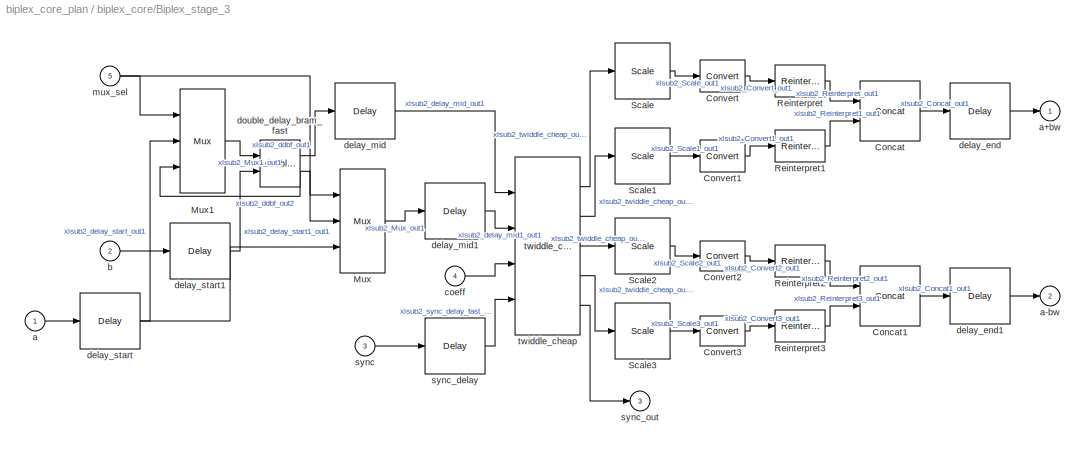
BLOCK [SubSystem] biplex_core/Biplex_stage_3
  FunctionWithSeparateData = off
  MaskCallbackString = ||||||||
  MaskEnableString = on,on,on,on,on,on,on,on,on
  MaskHideContents = off
  MaskIconFrame = on
  MaskIconOpaque = on
  MaskIconRotate = none
  MaskIconUnits = autoscale
  MaskPortRotate = default
  MaskPromptString = FFT Size|FFT Stage|Input Bit Width|Coefficient Bit Width|Output Bit Width|Delays in BRAM|BRAM latency|Downshift in this stage? (0 or 1)|In-Stage Delay Array
  MaskStyleString = edit,edit,edit,edit,edit,edit,edit,edit,edit
  MaskToolTipString = on,on,on,on,on,on,on,on,on
  MaskTunableValueString = on,on,on,on,on,on,on,on,on
  MaskValueString = 4|4|18|18|18|1|2|0|[0,1,0]
  MaskVariables = FFTSize=@1;FFTStage=@2;input_bit_width=@3;coeff_bit_width=@4;output_bit_width=@5;delays_bram=@6;bram_latency=@7;shift=@8;delay_arr=@9;
  MaskVisibilityString = on,on,on,on,on,on,on,on,on
  MinAlgLoopOccurrences = off
  Opaque = off
  Ports = [5, 3]
  PropExecContextOutsideSubsystem = off
  RTWSystemCode = Auto
  RequestExecContextInheritance = off
  SID = 124
  UserData = DataTag4
  UserDataPersistent = on
BLOCK [Reference] biplex_core/Biplex_stage_3/Concat  REF=xbsIndex_r4/Concat
  Ports = [2, 1]
  SID = 259
  SourceBlock = xbsIndex_r4/Concat
  SourceType = Xilinx Bus Concatenator Block
  block_type = concat
  dbl_ovrd = off
  has_advanced_control = 0
  infoedit = Concatenates two or more inputs.  Output will be cast to an unsigned value with the binary point at zero.
  num_inputs = 2
  sg_icon_stat = 60,60,2,1,white,blue,0,16398980,right,,[ ],[ ]
  sggui_pos = -1,-1,-1,-1
BLOCK [Reference] biplex_core/Biplex_stage_3/Concat1  REF=xbsIndex_r4/Concat
  Ports = [2, 1]
  SID = 260
  SourceBlock = xbsIndex_r4/Concat
  SourceType = Xilinx Bus Concatenator Block
  block_type = concat
  dbl_ovrd = off
  has_advanced_control = 0
  infoedit = Concatenates two or more inputs.  Output will be cast to an unsigned value with the binary point at zero.
  num_inputs = 2
  sg_icon_stat = 60,60,2,1,white,blue,0,16398980,right,,[ ],[ ]
  sggui_pos = -1,-1,-1,-1
BLOCK [Reference] biplex_core/Biplex_stage_3/Convert  REF=xbsIndex_r4/Convert
  Ports = [1, 1]
  SID = 261
  SourceBlock = xbsIndex_r4/Convert
  SourceType = Xilinx Type Converter Block
  arith_type = Signed  (2's comp)
  bin_pt = 17
  block_type = convert
  dbl_ovrd = off
  en = off
  has_advanced_control = 0
  infoedit = Hardware notes: rounding and saturating require hardware resources; truncating and wrapping do not.
  latency = 0
  n_bits = 18
  overflow = Wrap
  pipeline = off
  quantization = Truncate
  sg_icon_stat = 45,32,1,1,white,blue,0,edca21da,right,,[ ],[ ]
  sggui_pos = -1,-1,-1,-1
  xl_area = [0,0,0,0,0,0,0]
  xl_use_area = off
BLOCK [Reference] biplex_core/Biplex_stage_3/Convert1  REF=xbsIndex_r4/Convert
  Ports = [1, 1]
  SID = 262
  SourceBlock = xbsIndex_r4/Convert
  SourceType = Xilinx Type Converter Block
  arith_type = Signed  (2's comp)
  bin_pt = 17
  block_type = convert
  dbl_ovrd = off
  en = off
  has_advanced_control = 0
  infoedit = Hardware notes: rounding and saturating require hardware resources; truncating and wrapping do not.
  latency = 0
  n_bits = 18
  overflow = Wrap
  pipeline = off
  quantization = Truncate
  sg_icon_stat = 45,32,1,1,white,blue,0,edca21da,right,,[ ],[ ]
  sggui_pos = -1,-1,-1,-1
  xl_area = [0,0,0,0,0,0,0]
  xl_use_area = off
BLOCK [Reference] biplex_core/Biplex_stage_3/Convert2  REF=xbsIndex_r4/Convert
  Ports = [1, 1]
  SID = 263
  SourceBlock = xbsIndex_r4/Convert
  SourceType = Xilinx Type Converter Block
  arith_type = Signed  (2's comp)
  bin_pt = 17
  block_type = convert
  dbl_ovrd = off
  en = off
  has_advanced_control = 0
  infoedit = Hardware notes: rounding and saturating require hardware resources; truncating and wrapping do not.
  latency = 0
  n_bits = 18
  overflow = Wrap
  pipeline = off
  quantization = Truncate
  sg_icon_stat = 45,30,1,1,white,blue,0,edca21da,right,,[ ],[ ]
  sggui_pos = -1,-1,-1,-1
  xl_area = [0,0,0,0,0,0,0]
  xl_use_area = off
BLOCK [Reference] biplex_core/Biplex_stage_3/Convert3  REF=xbsIndex_r4/Convert
  Ports = [1, 1]
  SID = 264
  SourceBlock = xbsIndex_r4/Convert
  SourceType = Xilinx Type Converter Block
  arith_type = Signed  (2's comp)
  bin_pt = 17
  block_type = convert
  dbl_ovrd = off
  en = off
  has_advanced_control = 0
  infoedit = Hardware notes: rounding and saturating require hardware resources; truncating and wrapping do not.
  latency = 0
  n_bits = 18
  overflow = Wrap
  pipeline = off
  quantization = Truncate
  sg_icon_stat = 45,30,1,1,white,blue,0,edca21da,right,,[ ],[ ]
  sggui_pos = -1,-1,-1,-1
  xl_area = [0,0,0,0,0,0,0]
  xl_use_area = off
BLOCK [Reference] biplex_core/Biplex_stage_3/Mux  REF=xbsIndex_r4/Mux
  Ports = [3, 1]
  SID = 265
  SourceBlock = xbsIndex_r4/Mux
  SourceType = Xilinx Bus Multiplexer Block
  arith_type = Signed  (2's comp)
  bin_pt = 2
  block_type = mux
  dbl_ovrd = off
  en = off
  has_advanced_control = 0
  inputs = 2
  latency = 0
  n_bits = 8
  overflow = Wrap
  precision = Full
  quantization = Truncate
  sg_icon_stat = 45,104,3,1,white,blue,3,eb98d690,right,,[ ],[ ]
  sggui_pos = -1,-1,-1,-1
  xl_area = [0,0,0,0,0,0,0]
  xl_use_area = off
BLOCK [Reference] biplex_core/Biplex_stage_3/Mux1  REF=xbsIndex_r4/Mux
  Ports = [3, 1]
  SID = 266
  SourceBlock = xbsIndex_r4/Mux
  SourceType = Xilinx Bus Multiplexer Block
  arith_type = Signed  (2's comp)
  bin_pt = 2
  block_type = mux
  dbl_ovrd = off
  en = off
  has_advanced_control = 0
  inputs = 2
  latency = 0
  n_bits = 8
  overflow = Wrap
  precision = Full
  quantization = Truncate
  sg_icon_stat = 45,104,3,1,white,blue,3,eb98d690,right,,[ ],[ ]
  sggui_pos = -1,-1,-1,-1
  xl_area = [0,0,0,0,0,0,0]
  xl_use_area = off
BLOCK [Reference] biplex_core/Biplex_stage_3/Reinterpret  REF=xbsIndex_r4/Reinterpret
  Ports = [1, 1]
  SID = 267
  SourceBlock = xbsIndex_r4/Reinterpret
  SourceType = Xilinx Type Reinterpreter Block
  arith_type = Unsigned
  bin_pt = 0
  block_type = reinterpret
  force_arith_type = off
  force_bin_pt = off
  has_advanced_control = 0
  sg_icon_stat = 50,32,1,1,white,blue,0,6b04d0b0,right,,[ ],[ ]
  sggui_pos = -1,-1,-1,-1
BLOCK [Reference] biplex_core/Biplex_stage_3/Reinterpret1  REF=xbsIndex_r4/Reinterpret
  Ports = [1, 1]
  SID = 268
  SourceBlock = xbsIndex_r4/Reinterpret
  SourceType = Xilinx Type Reinterpreter Block
  arith_type = Unsigned
  bin_pt = 0
  block_type = reinterpret
  force_arith_type = off
  force_bin_pt = off
  has_advanced_control = 0
  sg_icon_stat = 50,32,1,1,white,blue,0,6b04d0b0,right,,[ ],[ ]
  sggui_pos = -1,-1,-1,-1
BLOCK [Reference] biplex_core/Biplex_stage_3/Reinterpret2  REF=xbsIndex_r4/Reinterpret
  Ports = [1, 1]
  SID = 269
  SourceBlock = xbsIndex_r4/Reinterpret
  SourceType = Xilinx Type Reinterpreter Block
  arith_type = Unsigned
  bin_pt = 0
  block_type = reinterpret
  force_arith_type = off
  force_bin_pt = off
  has_advanced_control = 0
  sg_icon_stat = 50,32,1,1,white,blue,0,6b04d0b0,right,,[ ],[ ]
  sggui_pos = -1,-1,-1,-1
BLOCK [Reference] biplex_core/Biplex_stage_3/Reinterpret3  REF=xbsIndex_r4/Reinterpret
  Ports = [1, 1]
  SID = 270
  SourceBlock = xbsIndex_r4/Reinterpret
  SourceType = Xilinx Type Reinterpreter Block
  arith_type = Unsigned
  bin_pt = 0
  block_type = reinterpret
  force_arith_type = off
  force_bin_pt = off
  has_advanced_control = 0
  sg_icon_stat = 50,32,1,1,white,blue,0,6b04d0b0,right,,[ ],[ ]
  sggui_pos = -1,-1,-1,-1
BLOCK [Reference] biplex_core/Biplex_stage_3/Scale  REF=xbsIndex_r4/Scale
  Ports = [1, 1]
  SID = 271
  SourceBlock = xbsIndex_r4/Scale
  SourceType = Xilinx Input Scaler Block
  block_type = scale
  dbl_ovrd = off
  has_advanced_control = 0
  infoedit = Scales input by a power of two by adjusting the binary point position.<br><br>Hardware notes: In hardware this block costs nothing.
  scale_factor = -0
  sg_icon_stat = 55,56,1,1,white,blue,0,e7f93c29,right,,[ ],[ ]
  sggui_pos = -1,-1,-1,-1
BLOCK [Reference] biplex_core/Biplex_stage_3/Scale1  REF=xbsIndex_r4/Scale
  Ports = [1, 1]
  SID = 272
  SourceBlock = xbsIndex_r4/Scale
  SourceType = Xilinx Input Scaler Block
  block_type = scale
  dbl_ovrd = off
  has_advanced_control = 0
  infoedit = Scales input by a power of two by adjusting the binary point position.<br><br>Hardware notes: In hardware this block costs nothing.
  scale_factor = -0
  sg_icon_stat = 55,56,1,1,white,blue,0,e7f93c29,right,,[ ],[ ]
  sggui_pos = -1,-1,-1,-1
BLOCK [Reference] biplex_core/Biplex_stage_3/Scale2  REF=xbsIndex_r4/Scale
  Ports = [1, 1]
  SID = 273
  SourceBlock = xbsIndex_r4/Scale
  SourceType = Xilinx Input Scaler Block
  block_type = scale
  dbl_ovrd = off
  has_advanced_control = 0
  infoedit = Scales input by a power of two by adjusting the binary point position.<br><br>Hardware notes: In hardware this block costs nothing.
  scale_factor = -0
  sg_icon_stat = 55,56,1,1,white,blue,0,e7f93c29,right,,[ ],[ ]
  sggui_pos = -1,-1,-1,-1
BLOCK [Reference] biplex_core/Biplex_stage_3/Scale3  REF=xbsIndex_r4/Scale
  Ports = [1, 1]
  SID = 274
  SourceBlock = xbsIndex_r4/Scale
  SourceType = Xilinx Input Scaler Block
  block_type = scale
  dbl_ovrd = off
  has_advanced_control = 0
  infoedit = Scales input by a power of two by adjusting the binary point position.<br><br>Hardware notes: In hardware this block costs nothing.
  scale_factor = -0
  sg_icon_stat = 55,56,1,1,white,blue,0,e7f93c29,right,,[ ],[ ]
  sggui_pos = -1,-1,-1,-1
BLOCK [Inport] biplex_core/Biplex_stage_3/a
  IconDisplay = Port number
  SID = 125
BLOCK [Outport] biplex_core/Biplex_stage_3/a+bw
  IconDisplay = Port number
  SID = 154
BLOCK [Outport] biplex_core/Biplex_stage_3/a-bw
  IconDisplay = Port number
  Port = 2
  SID = 155
BLOCK [Inport] biplex_core/Biplex_stage_3/b
  IconDisplay = Port number
  Port = 2
  SID = 126
BLOCK [Inport] biplex_core/Biplex_stage_3/coeff
  IconDisplay = Port number
  Port = 4
  SID = 258
BLOCK [Reference] biplex_core/Biplex_stage_3/delay_end  REF=xbsIndex_r4/Delay
  Ports = [1, 1]
  SID = 276
  SourceBlock = xbsIndex_r4/Delay
  SourceType = Xilinx Delay Block
  block_type = delay
  dbl_ovrd = off
  en = off
  has_advanced_control = 0
  infoedit = Hardware notes: A delay line is a chain, each link of which is an SRL16 followed by a flip-flop.
  latency = 0
  reg_retiming = off
  sg_icon_stat = 60,56,1,1,white,blue,0,24450e6f,right,,[ ],[ ]
  sggui_pos = -1,-1,-1,-1
  xl_area = [0,0,0,0,0,0,0]
  xl_use_area = off
BLOCK [Reference] biplex_core/Biplex_stage_3/delay_end1  REF=xbsIndex_r4/Delay
  Ports = [1, 1]
  SID = 277
  SourceBlock = xbsIndex_r4/Delay
  SourceType = Xilinx Delay Block
  block_type = delay
  dbl_ovrd = off
  en = off
  has_advanced_control = 0
  infoedit = Hardware notes: A delay line is a chain, each link of which is an SRL16 followed by a flip-flop.
  latency = 0
  reg_retiming = off
  sg_icon_stat = 60,56,1,1,white,blue,0,24450e6f,right,,[ ],[ ]
  sggui_pos = -1,-1,-1,-1
  xl_area = [0,0,0,0,0,0,0]
  xl_use_area = off
BLOCK [Reference] biplex_core/Biplex_stage_3/delay_mid  REF=xbsIndex_r4/Delay
  Ports = [1, 1]
  SID = 278
  SourceBlock = xbsIndex_r4/Delay
  SourceType = Xilinx Delay Block
  block_type = delay
  dbl_ovrd = off
  en = off
  has_advanced_control = 0
  infoedit = Hardware notes: A delay line is a chain, each link of which is an SRL16 followed by a flip-flop.
  latency = 2
  reg_retiming = off
  sg_icon_stat = 60,56,1,1,white,blue,0,85ce9542,right,,[ ],[ ]
  sggui_pos = -1,-1,-1,-1
  xl_area = [0,0,0,0,0,0,0]
  xl_use_area = off
BLOCK [Reference] biplex_core/Biplex_stage_3/delay_mid1  REF=xbsIndex_r4/Delay
  Ports = [1, 1]
  SID = 279
  SourceBlock = xbsIndex_r4/Delay
  SourceType = Xilinx Delay Block
  block_type = delay
  dbl_ovrd = off
  en = off
  has_advanced_control = 0
  infoedit = Hardware notes: A delay line is a chain, each link of which is an SRL16 followed by a flip-flop.
  latency = 1
  reg_retiming = off
  sg_icon_stat = 60,56,1,1,white,blue,0,07b98262,right,,[ ],[ ]
  sggui_pos = -1,-1,-1,-1
  xl_area = [0,0,0,0,0,0,0]
  xl_use_area = off
BLOCK [Reference] biplex_core/Biplex_stage_3/delay_start  REF=xbsIndex_r4/Delay
  Ports = [1, 1]
  SID = 280
  SourceBlock = xbsIndex_r4/Delay
  SourceType = Xilinx Delay Block
  block_type = delay
  dbl_ovrd = off
  en = off
  has_advanced_control = 0
  infoedit = Hardware notes: A delay line is a chain, each link of which is an SRL16 followed by a flip-flop.
  latency = 0
  reg_retiming = off
  sg_icon_stat = 60,56,1,1,white,blue,0,24450e6f,right,,[ ],[ ]
  sggui_pos = -1,-1,-1,-1
  xl_area = [0,0,0,0,0,0,0]
  xl_use_area = off
BLOCK [Reference] biplex_core/Biplex_stage_3/delay_start1  REF=xbsIndex_r4/Delay
  Ports = [1, 1]
  SID = 281
  SourceBlock = xbsIndex_r4/Delay
  SourceType = Xilinx Delay Block
  block_type = delay
  dbl_ovrd = off
  en = off
  has_advanced_control = 0
  infoedit = Hardware notes: A delay line is a chain, each link of which is an SRL16 followed by a flip-flop.
  latency = 0
  reg_retiming = off
  sg_icon_stat = 60,56,1,1,white,blue,0,24450e6f,right,,[ ],[ ]
  sggui_pos = -1,-1,-1,-1
  xl_area = [0,0,0,0,0,0,0]
  xl_use_area = off
BLOCK [Reference] biplex_core/Biplex_stage_3/double_delay_bram_fast  REF=monroe_library/double_delay_bram_fast  (lib defined in mdl_6e3ec1066caf, mdl_8e463b7c25be, +1 more)
  FunctionWithSeparateData = off
  GeneratePreprocessorConditionals = off
  Ports = [2, 2]
  RTWMemSecDataConstants = Inherit from model
  RTWMemSecDataInternal = Inherit from model
  RTWMemSecDataParameters = Inherit from model
  RTWMemSecFuncExecute = Inherit from model
  RTWMemSecFuncInitTerm = Inherit from model
  SID = 275
  ShowPortLabels = FromPortIcon
  SourceBlock = monroe_library/double_delay_bram_fast
  SystemSampleTime = -1
  bram_latency = 2
  delay_len = 1
BLOCK [Inport] biplex_core/Biplex_stage_3/mux_sel
  IconDisplay = Port number
  Port = 5
  SID = 127
BLOCK [Inport] biplex_core/Biplex_stage_3/sync
  IconDisplay = Port number
  Port = 3
  SID = 128
BLOCK [Reference] biplex_core/Biplex_stage_3/sync_delay  REF=xbsIndex_r4/Delay
  Ports = [1, 1]
  SID = 282
  SourceBlock = xbsIndex_r4/Delay
  SourceType = Xilinx Delay Block
  block_type = delay
  dbl_ovrd = off
  en = off
  has_advanced_control = 0
  infoedit = Hardware notes: A delay line is a chain, each link of which is an SRL16 followed by a flip-flop.
  latency = 1
  reg_retiming = off
  sg_icon_stat = 60,56,1,1,white,blue,0,07b98262,right,,[ ],[ ]
  sggui_pos = -1,-1,-1,-1
  xl_area = [0,0,0,0,0,0,0]
  xl_use_area = off
BLOCK [Outport] biplex_core/Biplex_stage_3/sync_out
  IconDisplay = Port number
  Port = 3
  SID = 156
BLOCK [Reference] biplex_core/Biplex_stage_3/twiddle_cheap  REF=monroe_library/twiddle_cheap  (lib defined in mdl_6e3ec1066caf, mdl_8e463b7c25be, +1 more)
  FunctionWithSeparateData = off
  GeneratePreprocessorConditionals = off
  Ports = [4, 5]
  RTWMemSecDataConstants = Inherit from model
  RTWMemSecDataInternal = Inherit from model
  RTWMemSecDataParameters = Inherit from model
  RTWMemSecFuncExecute = Inherit from model
  RTWMemSecFuncInitTerm = Inherit from model
  SID = 283
  ShowPortLabels = FromPortIcon
  SourceBlock = monroe_library/twiddle_cheap
  SystemSampleTime = -1
  a_bin_pt = 17
  a_delay = 0
  a_n_bits = 18
  b_bin_pt = 17
  b_n_bits = 18
  w_bin_pt = 17
  w_n_bits = 18
BLOCK [Reference] biplex_core/Slice  REF=xbsIndex_r4/Slice
  Ports = [1, 1]
  SID = 284
  SourceBlock = xbsIndex_r4/Slice
  SourceType = Xilinx Bit Slice Extractor Block
  base0 = LSB of Input
  base1 = MSB of Input
  bit0 = 0
  bit1 = 0
  block_type = slice
  boolean_output = on
  dbl_ovrd = off
  has_advanced_control = 0
  infoedit = Extracts a given range of bits from each input sample and presents it at the output.  The output type is ordinarily unsigned with binary point at zero, but can be Boolean when the slice is one bit wide.<br><br>Hardware notes: In hardware this block costs nothing.  <repeated x13 — deduplicated; at blocks: Slice, Slice1, Slice2, Slice3, Slice4, Slice5, Slice6>
  mode = Upper Bit Location + Width
  nbits = 1
  sg_icon_stat = 60,30,1,1,white,blue,0,1fd851a7,right,,[ ],[ ]
  sg_mask_display = fprintf('','COMMENT: begin icon graphics');\npatch([0 60 60 0 0 ],[0 0 30 30 0 ],[0.77 0.82 0.91 ]);\nplot([0 60 60 0 0 ],[0 0 30 30 0 ]);\npatch([21.1 26.88 30.88 34.88 38.88 30.88 25.1 21.1 ],[19.44 19.44 23.44 19.44 23.44 23.44 23.44 19.44 ],[1 1 1 ]);\npatch([25.1 30.88 26.88 21.1 25.1 ],[15.44 15.44 19.44 19.44 15.44 ],[0.931 0.946 0.973 ]);\npatch([21.1 26.88 30.88 25.1 21.1 ],[11.44 11.44 1...<+315ch>  <repeated x8 — deduplicated; at blocks: Slice, Slice1, Slice2, Slice3, Slice4, Slice5, Slice6>
  sggui_pos = -1,-1,-1,-1
BLOCK [Reference] biplex_core/Slice1  REF=xbsIndex_r4/Slice
  Ports = [1, 1]
  SID = 285
  SourceBlock = xbsIndex_r4/Slice
  SourceType = Xilinx Bit Slice Extractor Block
  base0 = LSB of Input
  base1 = MSB of Input
  bit0 = 0
  bit1 = -1
  block_type = slice
  boolean_output = on
  dbl_ovrd = off
  has_advanced_control = 0
  mode = Upper Bit Location + Width
  nbits = 1
  sg_icon_stat = 60,30,1,1,white,blue,0,1fd851a7,right,,[ ],[ ]
  sggui_pos = -1,-1,-1,-1
BLOCK [Reference] biplex_core/Slice2  REF=xbsIndex_r4/Slice
  Ports = [1, 1]
  SID = 286
  SourceBlock = xbsIndex_r4/Slice
  SourceType = Xilinx Bit Slice Extractor Block
  base0 = LSB of Input
  base1 = MSB of Input
  bit0 = 0
  bit1 = -2
  block_type = slice
  boolean_output = on
  dbl_ovrd = off
  has_advanced_control = 0
  mode = Upper Bit Location + Width
  nbits = 1
  sg_icon_stat = 60,30,1,1,white,blue,0,1fd851a7,right,,[ ],[ ]
  sggui_pos = -1,-1,-1,-1
BLOCK [Reference] biplex_core/Slice3  REF=xbsIndex_r4/Slice
  Ports = [1, 1]
  SID = 287
  SourceBlock = xbsIndex_r4/Slice
  SourceType = Xilinx Bit Slice Extractor Block
  base0 = LSB of Input
  base1 = MSB of Input
  bit0 = 0
  bit1 = -3
  block_type = slice
  boolean_output = on
  dbl_ovrd = off
  has_advanced_control = 0
  mode = Upper Bit Location + Width
  nbits = 1
  sg_icon_stat = 60,30,1,1,white,blue,0,1fd851a7,right,,[ ],[ ]
  sggui_pos = -1,-1,-1,-1
BLOCK [Reference] biplex_core/Slice4  REF=xbsIndex_r4/Slice
  Ports = [1, 1]
  SID = 288
  SourceBlock = xbsIndex_r4/Slice
  SourceType = Xilinx Bit Slice Extractor Block
  base0 = LSB of Input
  base1 = MSB of Input
  bit0 = 0
  bit1 = 0
  block_type = slice
  boolean_output = off
  dbl_ovrd = off
  has_advanced_control = 0
  mode = Upper Bit Location + Width
  nbits = 36
  sg_icon_stat = 60,30,1,1,white,blue,0,1fd851a7,right,,[ ],[ ]
  sggui_pos = -1,-1,-1,-1
BLOCK [Reference] biplex_core/Slice5  REF=xbsIndex_r4/Slice
  Ports = [1, 1]
  SID = 289
  SourceBlock = xbsIndex_r4/Slice
  SourceType = Xilinx Bit Slice Extractor Block
  base0 = LSB of Input
  base1 = MSB of Input
  bit0 = 0
  bit1 = -36
  block_type = slice
  boolean_output = off
  dbl_ovrd = off
  has_advanced_control = 0
  mode = Upper Bit Location + Width
  nbits = 36
  sg_icon_stat = 60,30,1,1,white,blue,0,1fd851a7,right,,[ ],[ ]
  sggui_pos = -1,-1,-1,-1
BLOCK [SubSystem] biplex_core/biplex_coeff_muxsel_gen
  FunctionWithSeparateData = off
  MaskCallbackString = ||||
  MaskEnableString = on,on,on,on,on
  MaskHideContents = off
  MaskIconFrame = on
  MaskIconOpaque = on
  MaskIconRotate = none
  MaskIconUnits = autoscale
  MaskInitialization = config.source=str2func('biplex_coeff_muxsel_gen_draw');\nconfig.toplevel=gcb;\nconfig.debug=0;\nconfig.depend={'biplex_coeff_muxsel_gen_draw.m'};\nxBlock(config,{FFTSize, bit_width, register_coeffs, optional_delay_arr, stage_delay_arr});
  MaskPortRotate = default
  MaskPromptString = FFT Size|Coefficient Bit Width|Register Coeffs?|In-Stage Delay Array|Mandatory Stage Delay Array
  MaskStyleString = edit,edit,edit,edit,edit
  MaskToolTipString = on,on,on,on,on
  MaskTunableValueString = on,on,on,on,on
  MaskValueString = 4|18|0|[[1,0,1]; [1,1,1];  [1,1,1];  [1,1,1]]|[3,6,6,6]
  MaskVariables = FFTSize=@1;bit_width=@2;register_coeffs=@3;optional_delay_arr=@4;stage_delay_arr=@5;
  MaskVisibilityString = on,on,on,on,on
  MinAlgLoopOccurrences = off
  Opaque = off
  Ports = [1, 3]
  PropExecContextOutsideSubsystem = off
  RTWSystemCode = Auto
  RequestExecContextInheritance = off
  SID = 5
  UserData = DataTag5
  UserDataPersistent = on
BLOCK [Reference] biplex_core/biplex_coeff_muxsel_gen/Concat  REF=xbsIndex_r4/Concat
  Ports = [4, 1]
  SID = 5:1246
  SourceBlock = xbsIndex_r4/Concat
  SourceType = Xilinx Bus Concatenator Block
  block_type = concat
  dbl_ovrd = off
  has_advanced_control = 0
  infoedit = Concatenates two or more inputs.  Output will be cast to an unsigned value with the binary point at zero.
  num_inputs = 4
  sg_icon_stat = 60,61,4,1,white,blue,0,47d3d416,right,,[ ],[ ]
  sg_mask_display = fprintf('','COMMENT: begin icon graphics');\npatch([0 60 60 0 0 ],[0 0 61 61 0 ],[0.77 0.82 0.91 ]);\nplot([0 60 60 0 0 ],[0 0 61 61 0 ]);\npatch([12.2 23.76 31.76 39.76 47.76 31.76 20.2 12.2 ],[38.88 38.88 46.88 38.88 46.88 46.88 46.88 38.88 ],[1 1 1 ]);\npatch([20.2 31.76 23.76 12.2 20.2 ],[30.88 30.88 38.88 38.88 30.88 ],[0.931 0.946 0.973 ]);\npatch([12.2 23.76 31.76 20.2 12.2 ],[22.88 22.88 3...<+421ch>
  sggui_pos = -1,-1,-1,-1
BLOCK [Reference] biplex_core/biplex_coeff_muxsel_gen/Counter  REF=xbsIndex_r4/Counter
  Ports = [1, 1]
  SID = 5:1247
  SourceBlock = xbsIndex_r4/Counter
  SourceType = Xilinx Counter Block
  arith_type = Unsigned
  bin_pt = 0
  block_type = counter
  cnt_by_val = 1
  cnt_to = Inf
  cnt_type = Free Running
  dbl_ovrd = off
  en = off
  explicit_period = on
  has_advanced_control = 0
  implementation = Fabric
  infoedit = Hardware notes: Free running counters are the least expensive in hardware.  A count limited counter is implemented by combining a counter with a comparator.
  load_pin = off
  n_bits = 3
  operation = Up
  period = 1
  rst = on
  sg_icon_stat = 60,60,1,1,white,blue,0,803eba70,right,,[ ],[ ]
  sg_mask_display = fprintf('','COMMENT: begin icon graphics');\npatch([0 60 60 0 0 ],[0 0 60 60 0 ],[0.77 0.82 0.91 ]);\nplot([0 60 60 0 0 ],[0 0 60 60 0 ]);\npatch([12.2 23.76 31.76 39.76 47.76 31.76 20.2 12.2 ],[38.88 38.88 46.88 38.88 46.88 46.88 46.88 38.88 ],[1 1 1 ]);\npatch([20.2 31.76 23.76 12.2 20.2 ],[30.88 30.88 38.88 38.88 30.88 ],[0.931 0.946 0.973 ]);\npatch([12.2 23.76 31.76 20.2 12.2 ],[22.88 22.88 3...<+379ch>
  sggui_pos = -1,-1,-1,-1
  start_count = 0
  use_behavioral_HDL = off
  xl_area = [0,0,0,0,0,0,0]
  xl_use_area = off
BLOCK [Reference] biplex_core/biplex_coeff_muxsel_gen/Delay  REF=xbsIndex_r4/Delay
  Ports = [1, 1]
  SID = 5:1248
  SourceBlock = xbsIndex_r4/Delay
  SourceType = Xilinx Delay Block
  block_type = delay
  dbl_ovrd = off
  en = off
  has_advanced_control = 0
  infoedit = Hardware notes: A delay line is a chain, each link of which is an SRL16 followed by a flip-flop.
  latency = 16
  reg_retiming = off
  sg_icon_stat = 60,56,1,1,white,blue,0,f89f7887,right,,[ ],[ ]
  sg_mask_display = fprintf('','COMMENT: begin icon graphics');\npatch([0 60 60 0 0 ],[0 0 56 56 0 ],[0.77 0.82 0.91 ]);\nplot([0 60 60 0 0 ],[0 0 56 56 0 ]);\npatch([12.2 23.76 31.76 39.76 47.76 31.76 20.2 12.2 ],[36.88 36.88 44.88 36.88 44.88 44.88 44.88 36.88 ],[1 1 1 ]);\npatch([20.2 31.76 23.76 12.2 20.2 ],[28.88 28.88 36.88 36.88 28.88 ],[0.931 0.946 0.973 ]);\npatch([12.2 23.76 31.76 20.2 12.2 ],[20.88 20.88 2...<+321ch>
  sggui_pos = -1,-1,-1,-1
  xl_area = [0,0,0,0,0,0,0]
  xl_use_area = off
BLOCK [Reference] biplex_core/biplex_coeff_muxsel_gen/Delay1  REF=xbsIndex_r4/Delay
  Ports = [1, 1]
  SID = 5:1249
  SourceBlock = xbsIndex_r4/Delay
  SourceType = Xilinx Delay Block
  block_type = delay
  dbl_ovrd = off
  en = off
  has_advanced_control = 0
  infoedit = Hardware notes: A delay line is a chain, each link of which is an SRL16 followed by a flip-flop.
  latency = 9
  reg_retiming = off
  sg_icon_stat = 60,56,1,1,white,blue,0,c2fef566,right,,[ ],[ ]
  sggui_pos = -1,-1,-1,-1
  xl_area = [0,0,0,0,0,0,0]
  xl_use_area = off
BLOCK [Reference] biplex_core/biplex_coeff_muxsel_gen/Delay2  REF=xbsIndex_r4/Delay
  Ports = [1, 1]
  SID = 5:1250
  SourceBlock = xbsIndex_r4/Delay
  SourceType = Xilinx Delay Block
  block_type = delay
  dbl_ovrd = off
  en = off
  has_advanced_control = 0
  infoedit = Hardware notes: A delay line is a chain, each link of which is an SRL16 followed by a flip-flop.
  latency = 1
  reg_retiming = off
  sg_icon_stat = 60,56,1,1,white,blue,0,07b98262,right,,[ ],[ ]
  sggui_pos = -1,-1,-1,-1
  xl_area = [0,0,0,0,0,0,0]
  xl_use_area = off
BLOCK [Reference] biplex_core/biplex_coeff_muxsel_gen/Delay3  REF=xbsIndex_r4/Delay
  Ports = [1, 1]
  SID = 5:1251
  SourceBlock = xbsIndex_r4/Delay
  SourceType = Xilinx Delay Block
  block_type = delay
  dbl_ovrd = off
  en = off
  has_advanced_control = 0
  infoedit = Hardware notes: A delay line is a chain, each link of which is an SRL16 followed by a flip-flop.
  latency = 5
  reg_retiming = off
  sg_icon_stat = 60,56,1,1,white,blue,0,ec356abf,right,,[ ],[ ]
  sggui_pos = -1,-1,-1,-1
  xl_area = [0,0,0,0,0,0,0]
  xl_use_area = off
BLOCK [Reference] biplex_core/biplex_coeff_muxsel_gen/Delay4  REF=xbsIndex_r4/Delay
  Ports = [1, 1]
  SID = 5:1252
  SourceBlock = xbsIndex_r4/Delay
  SourceType = Xilinx Delay Block
  block_type = delay
  dbl_ovrd = off
  en = off
  has_advanced_control = 0
  infoedit = Hardware notes: A delay line is a chain, each link of which is an SRL16 followed by a flip-flop.
  latency = 9
  reg_retiming = off
  sg_icon_stat = 60,56,1,1,white,blue,0,c2fef566,right,,[ ],[ ]
  sggui_pos = -1,-1,-1,-1
  xl_area = [0,0,0,0,0,0,0]
  xl_use_area = off
BLOCK [Reference] biplex_core/biplex_coeff_muxsel_gen/Delay5  REF=xbsIndex_r4/Delay
  Ports = [1, 1]
  SID = 5:1253
  SourceBlock = xbsIndex_r4/Delay
  SourceType = Xilinx Delay Block
  block_type = delay
  dbl_ovrd = off
  en = off
  has_advanced_control = 0
  infoedit = Hardware notes: A delay line is a chain, each link of which is an SRL16 followed by a flip-flop.
  latency = 9
  reg_retiming = off
  sg_icon_stat = 60,56,1,1,white,blue,0,c2fef566,right,,[ ],[ ]
  sggui_pos = -1,-1,-1,-1
  xl_area = [0,0,0,0,0,0,0]
  xl_use_area = off
BLOCK [Reference] biplex_core/biplex_coeff_muxsel_gen/Delay6  REF=xbsIndex_r4/Delay
  Ports = [1, 1]
  SID = 5:1254
  SourceBlock = xbsIndex_r4/Delay
  SourceType = Xilinx Delay Block
  block_type = delay
  dbl_ovrd = off
  en = off
  has_advanced_control = 0
  infoedit = Hardware notes: A delay line is a chain, each link of which is an SRL16 followed by a flip-flop.
  latency = 1
  reg_retiming = off
  sg_icon_stat = 60,56,1,1,white,blue,0,07b98262,right,,[ ],[ ]
  sggui_pos = -1,-1,-1,-1
  xl_area = [0,0,0,0,0,0,0]
  xl_use_area = off
BLOCK [Reference] biplex_core/biplex_coeff_muxsel_gen/Delay7  REF=xbsIndex_r4/Delay
  Ports = [1, 1]
  SID = 5:1255
  SourceBlock = xbsIndex_r4/Delay
  SourceType = Xilinx Delay Block
  block_type = delay
  dbl_ovrd = off
  en = off
  has_advanced_control = 0
  infoedit = Hardware notes: A delay line is a chain, each link of which is an SRL16 followed by a flip-flop.
  latency = 1
  reg_retiming = off
  sg_icon_stat = 60,56,1,1,white,blue,0,07b98262,right,,[ ],[ ]
  sggui_pos = -1,-1,-1,-1
  xl_area = [0,0,0,0,0,0,0]
  xl_use_area = off
BLOCK [Reference] biplex_core/biplex_coeff_muxsel_gen/Delay8  REF=xbsIndex_r4/Delay
  Ports = [1, 1]
  SID = 5:1256
  SourceBlock = xbsIndex_r4/Delay
  SourceType = Xilinx Delay Block
  block_type = delay
  dbl_ovrd = off
  en = off
  has_advanced_control = 0
  infoedit = Hardware notes: A delay line is a chain, each link of which is an SRL16 followed by a flip-flop.
  latency = 1
  reg_retiming = off
  sg_icon_stat = 60,56,1,1,white,blue,0,07b98262,right,,[ ],[ ]
  sggui_pos = -1,-1,-1,-1
  xl_area = [0,0,0,0,0,0,0]
  xl_use_area = off
BLOCK [Reference] biplex_core/biplex_coeff_muxsel_gen/Delay9  REF=xbsIndex_r4/Delay
  Ports = [1, 1]
  SID = 5:1257
  SourceBlock = xbsIndex_r4/Delay
  SourceType = Xilinx Delay Block
  block_type = delay
  dbl_ovrd = off
  en = off
  has_advanced_control = 0
  infoedit = Hardware notes: A delay line is a chain, each link of which is an SRL16 followed by a flip-flop.
  latency = 1
  reg_retiming = off
  sg_icon_stat = 60,56,1,1,white,blue,0,07b98262,right,,[ ],[ ]
  sggui_pos = -1,-1,-1,-1
  xl_area = [0,0,0,0,0,0,0]
  xl_use_area = off
BLOCK [Reference] biplex_core/biplex_coeff_muxsel_gen/Slice  REF=xbsIndex_r4/Slice
  Ports = [1, 1]
  SID = 5:1258
  SourceBlock = xbsIndex_r4/Slice
  SourceType = Xilinx Bit Slice Extractor Block
  base0 = MSB of Input
  base1 = MSB of Input
  bit0 = 0
  bit1 = 0
  block_type = slice
  boolean_output = off
  dbl_ovrd = off
  has_advanced_control = 0
  mode = Upper Bit Location + Width
  nbits = 1
  sg_icon_stat = 60,30,1,1,white,blue,0,1fd851a7,right,,[ ],[ ]
  sggui_pos = -1,-1,-1,-1
BLOCK [Reference] biplex_core/biplex_coeff_muxsel_gen/Slice1  REF=xbsIndex_r4/Slice
  Ports = [1, 1]
  SID = 5:1259
  SourceBlock = xbsIndex_r4/Slice
  SourceType = Xilinx Bit Slice Extractor Block
  base0 = MSB of Input
  base1 = MSB of Input
  bit0 = 0
  bit1 = 0
  block_type = slice
  boolean_output = off
  dbl_ovrd = off
  has_advanced_control = 0
  mode = Upper Bit Location + Width
  nbits = 1
  sg_icon_stat = 60,32,1,1,white,blue,0,1fd851a7,right,,[ ],[ ]
  sg_mask_display = fprintf('','COMMENT: begin icon graphics');\npatch([0 60 60 0 0 ],[0 0 32 32 0 ],[0.77 0.82 0.91 ]);\nplot([0 60 60 0 0 ],[0 0 32 32 0 ]);\npatch([21.1 26.88 30.88 34.88 38.88 30.88 25.1 21.1 ],[20.44 20.44 24.44 20.44 24.44 24.44 24.44 20.44 ],[1 1 1 ]);\npatch([25.1 30.88 26.88 21.1 25.1 ],[16.44 16.44 20.44 20.44 16.44 ],[0.931 0.946 0.973 ]);\npatch([21.1 26.88 30.88 25.1 21.1 ],[12.44 12.44 1...<+315ch>  <repeated x5 — deduplicated; at blocks: Slice1, Slice2, Slice3, Slice4, Slice5>
  sggui_pos = -1,-1,-1,-1
BLOCK [Reference] biplex_core/biplex_coeff_muxsel_gen/Slice2  REF=xbsIndex_r4/Slice
  Ports = [1, 1]
  SID = 5:1260
  SourceBlock = xbsIndex_r4/Slice
  SourceType = Xilinx Bit Slice Extractor Block
  base0 = MSB of Input
  base1 = MSB of Input
  bit0 = 0
  bit1 = 0
  block_type = slice
  boolean_output = off
  dbl_ovrd = off
  has_advanced_control = 0
  mode = Upper Bit Location + Width
  nbits = 1
  sg_icon_stat = 60,32,1,1,white,blue,0,1fd851a7,right,,[ ],[ ]
  sggui_pos = -1,-1,-1,-1
BLOCK [Reference] biplex_core/biplex_coeff_muxsel_gen/Slice3  REF=xbsIndex_r4/Slice
  Ports = [1, 1]
  SID = 5:1261
  SourceBlock = xbsIndex_r4/Slice
  SourceType = Xilinx Bit Slice Extractor Block
  base0 = MSB of Input
  base1 = MSB of Input
  bit0 = 0
  bit1 = 0
  block_type = slice
  boolean_output = off
  dbl_ovrd = off
  has_advanced_control = 0
  mode = Upper Bit Location + Width
  nbits = 1
  sg_icon_stat = 60,32,1,1,white,blue,0,1fd851a7,right,,[ ],[ ]
  sggui_pos = -1,-1,-1,-1
BLOCK [Reference] biplex_core/biplex_coeff_muxsel_gen/Slice4  REF=xbsIndex_r4/Slice
  Ports = [1, 1]
  SID = 5:1262
  SourceBlock = xbsIndex_r4/Slice
  SourceType = Xilinx Bit Slice Extractor Block
  base0 = MSB of Input
  base1 = MSB of Input
  bit0 = 0
  bit1 = 0
  block_type = slice
  boolean_output = off
  dbl_ovrd = off
  has_advanced_control = 0
  mode = Upper Bit Location + Width
  nbits = 1
  sg_icon_stat = 60,32,1,1,white,blue,0,1fd851a7,right,,[ ],[ ]
  sggui_pos = -1,-1,-1,-1
BLOCK [Reference] biplex_core/biplex_coeff_muxsel_gen/Slice5  REF=xbsIndex_r4/Slice
  Ports = [1, 1]
  SID = 5:1263
  SourceBlock = xbsIndex_r4/Slice
  SourceType = Xilinx Bit Slice Extractor Block
  base0 = MSB of Input
  base1 = MSB of Input
  bit0 = 0
  bit1 = 0
  block_type = slice
  boolean_output = off
  dbl_ovrd = off
  has_advanced_control = 0
  mode = Upper Bit Location + Width
  nbits = 1
  sg_icon_stat = 60,32,1,1,white,blue,0,1fd851a7,right,,[ ],[ ]
  sggui_pos = -1,-1,-1,-1
BLOCK [Reference] biplex_core/biplex_coeff_muxsel_gen/Slice6  REF=xbsIndex_r4/Slice
  Ports = [1, 1]
  SID = 5:1264
  SourceBlock = xbsIndex_r4/Slice
  SourceType = Xilinx Bit Slice Extractor Block
  base0 = MSB of Input
  base1 = MSB of Input
  bit0 = 0
  bit1 = 0
  block_type = slice
  boolean_output = off
  dbl_ovrd = off
  has_advanced_control = 0
  mode = Upper Bit Location + Width
  nbits = 1
  sg_icon_stat = 60,30,1,1,white,blue,0,1fd851a7,right,,[ ],[ ]
  sggui_pos = -1,-1,-1,-1
BLOCK [Outport] biplex_core/biplex_coeff_muxsel_gen/coeff
  IconDisplay = Port number
  SID = 5:1275
BLOCK [Reference] biplex_core/biplex_coeff_muxsel_gen/coeff_gen3  REF=monroe_library/coeff_gen_dual  (lib defined in mdl_6e3ec1066caf, mdl_8e463b7c25be, +1 more)
  FunctionWithSeparateData = off
  GeneratePreprocessorConditionals = off
  Ports = [1, 1]
  RTWMemSecDataConstants = Inherit from model
  RTWMemSecDataInternal = Inherit from model
  RTWMemSecDataParameters = Inherit from model
  RTWMemSecFuncExecute = Inherit from model
  RTWMemSecFuncInitTerm = Inherit from model
  SID = 5:1265
  ShowPortLabels = FromPortIcon
  SourceBlock = monroe_library/coeff_gen_dual
  SystemSampleTime = -1
  bit_width = 18
  coeff = [0 -1 -0.707106781186547 -0.707106781186548 1 6.12323399573677e-017 0.707106781186548 -0.707106781186547]
  register_output = 0
BLOCK [Reference] biplex_core/biplex_coeff_muxsel_gen/coeff_gen4  REF=monroe_library/coeff_gen_dual  (lib defined in mdl_6e3ec1066caf, mdl_8e463b7c25be, +1 more)
  FunctionWithSeparateData = off
  GeneratePreprocessorConditionals = off
  Ports = [1, 1]
  RTWMemSecDataConstants = Inherit from model
  RTWMemSecDataInternal = Inherit from model
  RTWMemSecDataParameters = Inherit from model
  RTWMemSecFuncExecute = Inherit from model
  RTWMemSecFuncInitTerm = Inherit from model
  SID = 5:1266
  ShowPortLabels = FromPortIcon
  SourceBlock = monroe_library/coeff_gen_dual
  SystemSampleTime = -1
  bit_width = 18
  coeff = [0 -1 -0.707106781186547 -0.707106781186548 -0.38268343236509 -0.923879532511287 -0.923879532511287 -0.38268343236509 1 6.12323399573677e-017 0.707106781186548 -0.707106781186547 0.923879532511287 -0.38268343236509 0.38268343236509 -0.923879532511287]
  register_output = 0
BLOCK [SubSystem] biplex_core/biplex_coeff_muxsel_gen/cram
  FunctionWithSeparateData = off
  MaskHideContents = off
  MinAlgLoopOccurrences = off
  Opaque = off
  Ports = [2, 1]
  PropExecContextOutsideSubsystem = off
  RTWSystemCode = Auto
  RequestExecContextInheritance = off
  SID = 5:1267
BLOCK [Reference] biplex_core/biplex_coeff_muxsel_gen/cram/Concat  REF=xbsIndex_r4/Concat
  Ports = [2, 1]
  SID = 5:1270
  SourceBlock = xbsIndex_r4/Concat
  SourceType = Xilinx Bus Concatenator Block
  block_type = concat
  dbl_ovrd = off
  has_advanced_control = 0
  infoedit = Concatenates two or more inputs.  Output will be cast to an unsigned value with the binary point at zero.
  num_inputs = 2
  sg_icon_stat = 60,60,2,1,white,blue,0,16398980,right,,[ ],[ ]
  sggui_pos = -1,-1,-1,-1
BLOCK [Reference] biplex_core/biplex_coeff_muxsel_gen/cram/Reinterpret  REF=xbsIndex_r4/Reinterpret
  Ports = [1, 1]
  SID = 5:1271
  SourceBlock = xbsIndex_r4/Reinterpret
  SourceType = Xilinx Type Reinterpreter Block
  arith_type = Unsigned
  bin_pt = 0
  block_type = reinterpret
  force_arith_type = on
  force_bin_pt = on
  has_advanced_control = 0
  sg_icon_stat = 50,32,1,1,white,blue,0,6b04d0b0,right,,[ ],[ ]
  sggui_pos = -1,-1,-1,-1
BLOCK [Reference] biplex_core/biplex_coeff_muxsel_gen/cram/Reinterpret1  REF=xbsIndex_r4/Reinterpret
  Ports = [1, 1]
  SID = 5:1272
  SourceBlock = xbsIndex_r4/Reinterpret
  SourceType = Xilinx Type Reinterpreter Block
  arith_type = Unsigned
  bin_pt = 0
  block_type = reinterpret
  force_arith_type = on
  force_bin_pt = on
  has_advanced_control = 0
  sg_icon_stat = 50,32,1,1,white,blue,0,6b04d0b0,right,,[ ],[ ]
  sggui_pos = -1,-1,-1,-1
BLOCK [Inport] biplex_core/biplex_coeff_muxsel_gen/cram/in0
  IconDisplay = Port number
  SID = 5:1268
BLOCK [Inport] biplex_core/biplex_coeff_muxsel_gen/cram/in1
  IconDisplay = Port number
  Port = 2
  SID = 5:1269
BLOCK [Outport] biplex_core/biplex_coeff_muxsel_gen/cram/out
  IconDisplay = Port number
  SID = 5:1273
BLOCK [Outport] biplex_core/biplex_coeff_muxsel_gen/sel
  IconDisplay = Port number
  Port = 2
  SID = 5:1276
BLOCK [Inport] biplex_core/biplex_coeff_muxsel_gen/sync
  IconDisplay = Port number
  SID = 5:1245
BLOCK [Reference] biplex_core/biplex_coeff_muxsel_gen/sync_delay_fast  REF=monroe_library/sync_delay_fast  (lib defined in mdl_6e3ec1066caf, mdl_8e463b7c25be, +1 more)
  FunctionWithSeparateData = off
  GeneratePreprocessorConditionals = off
  Ports = [1, 1]
  RTWMemSecDataConstants = Inherit from model
  RTWMemSecDataInternal = Inherit from model
  RTWMemSecDataParameters = Inherit from model
  RTWMemSecFuncExecute = Inherit from model
  RTWMemSecFuncInitTerm = Inherit from model
  SID = 5:1274
  ShowPortLabels = FromPortIcon
  SourceBlock = monroe_library/sync_delay_fast
  SystemSampleTime = -1
  delay_len = 85
BLOCK [Outport] biplex_core/biplex_coeff_muxsel_gen/sync_out
  IconDisplay = Port number
  Port = 3
  SID = 5:1277
BLOCK [Inport] biplex_core/in0
  IconDisplay = Port number
  SID = 292
BLOCK [Inport] biplex_core/in1
  IconDisplay = Port number
  Port = 2
  SID = 295
BLOCK [Inport] biplex_core/in2
  IconDisplay = Port number
  Port = 3
  SID = 296
BLOCK [Inport] biplex_core/in3
  IconDisplay = Port number
  Port = 4
  SID = 297
BLOCK [Outport] biplex_core/out1
  IconDisplay = Port number
  SID = 294
BLOCK [Outport] biplex_core/out2
  IconDisplay = Port number
  Port = 2
  SID = 298
BLOCK [Reference] biplex_core/ri_to_c  REF=monroe_library/ri_to_c  (lib defined in mdl_6e3ec1066caf, mdl_8e463b7c25be, +1 more)
  FunctionWithSeparateData = off
  GeneratePreprocessorConditionals = off
  Ports = [2, 1]
  RTWMemSecDataConstants = Inherit from model
  RTWMemSecDataInternal = Inherit from model
  RTWMemSecDataParameters = Inherit from model
  RTWMemSecFuncExecute = Inherit from model
  RTWMemSecFuncInitTerm = Inherit from model
  SID = 6
  ShowPortLabels = FromPortIcon
  SourceBlock = monroe_library/ri_to_c
  SourceType = ri_to_c
  SystemSampleTime = -1
  UserData = DataTag6
  UserDataPersistent = on
BLOCK [Reference] biplex_core/ri_to_c1  REF=monroe_library/ri_to_c  (lib defined in mdl_6e3ec1066caf, mdl_8e463b7c25be, +1 more)
  FunctionWithSeparateData = off
  GeneratePreprocessorConditionals = off
  Ports = [2, 1]
  RTWMemSecDataConstants = Inherit from model
  RTWMemSecDataInternal = Inherit from model
  RTWMemSecDataParameters = Inherit from model
  RTWMemSecFuncExecute = Inherit from model
  RTWMemSecFuncInitTerm = Inherit from model
  SID = 7
  ShowPortLabels = FromPortIcon
  SourceBlock = monroe_library/ri_to_c
  SourceType = ri_to_c
  SystemSampleTime = -1
  UserData = DataTag7
  UserDataPersistent = on
BLOCK [Inport] biplex_core/sync
  IconDisplay = Port number
  Port = 5
  SID = 291
BLOCK [Outport] biplex_core/sync_out
  IconDisplay = Port number
  Port = 3
  SID = 293
LINE biplex_core/Biplex_stage_/Concat1:1 -> biplex_core/Biplex_stage_/delay_end1:1
LINE biplex_core/Biplex_stage_/Concat:1 -> biplex_core/Biplex_stage_/delay_end:1
LINE biplex_core/Biplex_stage_/Convert1:1 -> biplex_core/Biplex_stage_/Reinterpret1:1
LINE biplex_core/Biplex_stage_/Convert2:1 -> biplex_core/Biplex_stage_/Reinterpret2:1
LINE biplex_core/Biplex_stage_/Convert3:1 -> biplex_core/Biplex_stage_/Reinterpret3:1
LINE biplex_core/Biplex_stage_/Convert:1 -> biplex_core/Biplex_stage_/Reinterpret:1
LINE biplex_core/Biplex_stage_/Mux1:1 -> biplex_core/Biplex_stage_/double_delay_bram_fast:1
LINE biplex_core/Biplex_stage_/Mux:1 -> biplex_core/Biplex_stage_/delay_mid1:1
LINE biplex_core/Biplex_stage_/Reinterpret1:1 -> biplex_core/Biplex_stage_/Concat:2
LINE biplex_core/Biplex_stage_/Reinterpret2:1 -> biplex_core/Biplex_stage_/Concat1:1
LINE biplex_core/Biplex_stage_/Reinterpret3:1 -> biplex_core/Biplex_stage_/Concat1:2
LINE biplex_core/Biplex_stage_/Reinterpret:1 -> biplex_core/Biplex_stage_/Concat:1
LINE biplex_core/Biplex_stage_/Scale1:1 -> biplex_core/Biplex_stage_/Convert1:1
LINE biplex_core/Biplex_stage_/Scale2:1 -> biplex_core/Biplex_stage_/Convert2:1
LINE biplex_core/Biplex_stage_/Scale3:1 -> biplex_core/Biplex_stage_/Convert3:1
LINE biplex_core/Biplex_stage_/Scale:1 -> biplex_core/Biplex_stage_/Convert:1
LINE biplex_core/Biplex_stage_/a:1 -> biplex_core/Biplex_stage_/delay_start:1
LINE biplex_core/Biplex_stage_/b:1 -> biplex_core/Biplex_stage_/delay_start1:1
LINE biplex_core/Biplex_stage_/delay_end1:1 -> biplex_core/Biplex_stage_/a-bw:1
LINE biplex_core/Biplex_stage_/delay_end:1 -> biplex_core/Biplex_stage_/a+bw:1
LINE biplex_core/Biplex_stage_/delay_mid1:1 -> biplex_core/Biplex_stage_/twiddle_stage1:2
LINE biplex_core/Biplex_stage_/delay_mid:1 -> biplex_core/Biplex_stage_/twiddle_stage1:1
LINE biplex_core/Biplex_stage_/delay_start1:1 -> biplex_core/Biplex_stage_/double_delay_bram_fast:2
NET biplex_core/Biplex_stage_/delay_start:1 -> biplex_core/Biplex_stage_/Mux1:2, biplex_core/Biplex_stage_/Mux:3
LINE biplex_core/Biplex_stage_/double_delay_bram_fast:1 -> biplex_core/Biplex_stage_/delay_mid:1
NET biplex_core/Biplex_stage_/double_delay_bram_fast:2 -> biplex_core/Biplex_stage_/Mux1:3, biplex_core/Biplex_stage_/Mux:2
NET biplex_core/Biplex_stage_/mux_sel:1 -> biplex_core/Biplex_stage_/Mux1:1, biplex_core/Biplex_stage_/Mux:1
LINE biplex_core/Biplex_stage_/sync:1 -> biplex_core/Biplex_stage_/sync_delay:1
LINE biplex_core/Biplex_stage_/sync_delay:1 -> biplex_core/Biplex_stage_/twiddle_stage1:3
LINE biplex_core/Biplex_stage_/twiddle_stage1:1 -> biplex_core/Biplex_stage_/Scale:1
LINE biplex_core/Biplex_stage_/twiddle_stage1:2 -> biplex_core/Biplex_stage_/Scale1:1
LINE biplex_core/Biplex_stage_/twiddle_stage1:3 -> biplex_core/Biplex_stage_/Scale2:1
LINE biplex_core/Biplex_stage_/twiddle_stage1:4 -> biplex_core/Biplex_stage_/Scale3:1
LINE biplex_core/Biplex_stage_/twiddle_stage1:5 -> biplex_core/Biplex_stage_/sync_out:1
LINE biplex_core/Biplex_stage_1/Concat1:1 -> biplex_core/Biplex_stage_1/delay_end1:1
LINE biplex_core/Biplex_stage_1/Concat:1 -> biplex_core/Biplex_stage_1/delay_end:1
LINE biplex_core/Biplex_stage_1/Convert1:1 -> biplex_core/Biplex_stage_1/Reinterpret1:1
LINE biplex_core/Biplex_stage_1/Convert2:1 -> biplex_core/Biplex_stage_1/Reinterpret2:1
LINE biplex_core/Biplex_stage_1/Convert3:1 -> biplex_core/Biplex_stage_1/Reinterpret3:1
LINE biplex_core/Biplex_stage_1/Convert:1 -> biplex_core/Biplex_stage_1/Reinterpret:1
LINE biplex_core/Biplex_stage_1/Mux1:1 -> biplex_core/Biplex_stage_1/double_delay_bram_fast:1
LINE biplex_core/Biplex_stage_1/Mux:1 -> biplex_core/Biplex_stage_1/delay_mid1:1
LINE biplex_core/Biplex_stage_1/Reinterpret1:1 -> biplex_core/Biplex_stage_1/Concat:2
LINE biplex_core/Biplex_stage_1/Reinterpret2:1 -> biplex_core/Biplex_stage_1/Concat1:1
LINE biplex_core/Biplex_stage_1/Reinterpret3:1 -> biplex_core/Biplex_stage_1/Concat1:2
LINE biplex_core/Biplex_stage_1/Reinterpret:1 -> biplex_core/Biplex_stage_1/Concat:1
LINE biplex_core/Biplex_stage_1/Scale1:1 -> biplex_core/Biplex_stage_1/Convert1:1
LINE biplex_core/Biplex_stage_1/Scale2:1 -> biplex_core/Biplex_stage_1/Convert2:1
LINE biplex_core/Biplex_stage_1/Scale3:1 -> biplex_core/Biplex_stage_1/Convert3:1
LINE biplex_core/Biplex_stage_1/Scale:1 -> biplex_core/Biplex_stage_1/Convert:1
LINE biplex_core/Biplex_stage_1/a:1 -> biplex_core/Biplex_stage_1/delay_start:1
LINE biplex_core/Biplex_stage_1/b:1 -> biplex_core/Biplex_stage_1/delay_start1:1
LINE biplex_core/Biplex_stage_1/delay_end1:1 -> biplex_core/Biplex_stage_1/a-bw:1
LINE biplex_core/Biplex_stage_1/delay_end:1 -> biplex_core/Biplex_stage_1/a+bw:1
LINE biplex_core/Biplex_stage_1/delay_mid1:1 -> biplex_core/Biplex_stage_1/twiddle_stage2:2
LINE biplex_core/Biplex_stage_1/delay_mid:1 -> biplex_core/Biplex_stage_1/twiddle_stage2:1
LINE biplex_core/Biplex_stage_1/delay_start1:1 -> biplex_core/Biplex_stage_1/double_delay_bram_fast:2
NET biplex_core/Biplex_stage_1/delay_start:1 -> biplex_core/Biplex_stage_1/Mux1:2, biplex_core/Biplex_stage_1/Mux:3
LINE biplex_core/Biplex_stage_1/double_delay_bram_fast:1 -> biplex_core/Biplex_stage_1/delay_mid:1
NET biplex_core/Biplex_stage_1/double_delay_bram_fast:2 -> biplex_core/Biplex_stage_1/Mux1:3, biplex_core/Biplex_stage_1/Mux:2
NET biplex_core/Biplex_stage_1/mux_sel:1 -> biplex_core/Biplex_stage_1/Mux1:1, biplex_core/Biplex_stage_1/Mux:1
LINE biplex_core/Biplex_stage_1/sync:1 -> biplex_core/Biplex_stage_1/sync_delay:1
LINE biplex_core/Biplex_stage_1/sync_delay:1 -> biplex_core/Biplex_stage_1/twiddle_stage2:3
LINE biplex_core/Biplex_stage_1/twiddle_stage2:1 -> biplex_core/Biplex_stage_1/Scale:1
LINE biplex_core/Biplex_stage_1/twiddle_stage2:2 -> biplex_core/Biplex_stage_1/Scale1:1
LINE biplex_core/Biplex_stage_1/twiddle_stage2:3 -> biplex_core/Biplex_stage_1/Scale2:1
LINE biplex_core/Biplex_stage_1/twiddle_stage2:4 -> biplex_core/Biplex_stage_1/Scale3:1
LINE biplex_core/Biplex_stage_1/twiddle_stage2:5 -> biplex_core/Biplex_stage_1/sync_out:1
LINE biplex_core/Biplex_stage_1:1 -> biplex_core/Biplex_stage_2:1
LINE biplex_core/Biplex_stage_1:2 -> biplex_core/Biplex_stage_2:2
LINE biplex_core/Biplex_stage_1:3 -> biplex_core/Biplex_stage_2:3
LINE biplex_core/Biplex_stage_2/Concat1:1 -> biplex_core/Biplex_stage_2/delay_end1:1
LINE biplex_core/Biplex_stage_2/Concat:1 -> biplex_core/Biplex_stage_2/delay_end:1
LINE biplex_core/Biplex_stage_2/Convert1:1 -> biplex_core/Biplex_stage_2/Reinterpret1:1
LINE biplex_core/Biplex_stage_2/Convert2:1 -> biplex_core/Biplex_stage_2/Reinterpret2:1
LINE biplex_core/Biplex_stage_2/Convert3:1 -> biplex_core/Biplex_stage_2/Reinterpret3:1
LINE biplex_core/Biplex_stage_2/Convert:1 -> biplex_core/Biplex_stage_2/Reinterpret:1
LINE biplex_core/Biplex_stage_2/Mux1:1 -> biplex_core/Biplex_stage_2/double_delay_bram_fast:1
LINE biplex_core/Biplex_stage_2/Mux:1 -> biplex_core/Biplex_stage_2/delay_mid1:1
LINE biplex_core/Biplex_stage_2/Reinterpret1:1 -> biplex_core/Biplex_stage_2/Concat:2
LINE biplex_core/Biplex_stage_2/Reinterpret2:1 -> biplex_core/Biplex_stage_2/Concat1:1
LINE biplex_core/Biplex_stage_2/Reinterpret3:1 -> biplex_core/Biplex_stage_2/Concat1:2
LINE biplex_core/Biplex_stage_2/Reinterpret:1 -> biplex_core/Biplex_stage_2/Concat:1
LINE biplex_core/Biplex_stage_2/Scale1:1 -> biplex_core/Biplex_stage_2/Convert1:1
LINE biplex_core/Biplex_stage_2/Scale2:1 -> biplex_core/Biplex_stage_2/Convert2:1
LINE biplex_core/Biplex_stage_2/Scale3:1 -> biplex_core/Biplex_stage_2/Convert3:1
LINE biplex_core/Biplex_stage_2/Scale:1 -> biplex_core/Biplex_stage_2/Convert:1
LINE biplex_core/Biplex_stage_2/a:1 -> biplex_core/Biplex_stage_2/delay_start:1
LINE biplex_core/Biplex_stage_2/b:1 -> biplex_core/Biplex_stage_2/delay_start1:1
LINE biplex_core/Biplex_stage_2/coeff:1 -> biplex_core/Biplex_stage_2/twiddle_cheap:3
LINE biplex_core/Biplex_stage_2/delay_end1:1 -> biplex_core/Biplex_stage_2/a-bw:1
LINE biplex_core/Biplex_stage_2/delay_end:1 -> biplex_core/Biplex_stage_2/a+bw:1
LINE biplex_core/Biplex_stage_2/delay_mid1:1 -> biplex_core/Biplex_stage_2/twiddle_cheap:2
LINE biplex_core/Biplex_stage_2/delay_mid:1 -> biplex_core/Biplex_stage_2/twiddle_cheap:1
LINE biplex_core/Biplex_stage_2/delay_start1:1 -> biplex_core/Biplex_stage_2/double_delay_bram_fast:2
NET biplex_core/Biplex_stage_2/delay_start:1 -> biplex_core/Biplex_stage_2/Mux1:2, biplex_core/Biplex_stage_2/Mux:3
LINE biplex_core/Biplex_stage_2/double_delay_bram_fast:1 -> biplex_core/Biplex_stage_2/delay_mid:1
NET biplex_core/Biplex_stage_2/double_delay_bram_fast:2 -> biplex_core/Biplex_stage_2/Mux1:3, biplex_core/Biplex_stage_2/Mux:2
NET biplex_core/Biplex_stage_2/mux_sel:1 -> biplex_core/Biplex_stage_2/Mux1:1, biplex_core/Biplex_stage_2/Mux:1
LINE biplex_core/Biplex_stage_2/sync:1 -> biplex_core/Biplex_stage_2/sync_delay:1
LINE biplex_core/Biplex_stage_2/sync_delay:1 -> biplex_core/Biplex_stage_2/twiddle_cheap:4
LINE biplex_core/Biplex_stage_2/twiddle_cheap:1 -> biplex_core/Biplex_stage_2/Scale:1
LINE biplex_core/Biplex_stage_2/twiddle_cheap:2 -> biplex_core/Biplex_stage_2/Scale1:1
LINE biplex_core/Biplex_stage_2/twiddle_cheap:3 -> biplex_core/Biplex_stage_2/Scale2:1
LINE biplex_core/Biplex_stage_2/twiddle_cheap:4 -> biplex_core/Biplex_stage_2/Scale3:1
LINE biplex_core/Biplex_stage_2/twiddle_cheap:5 -> biplex_core/Biplex_stage_2/sync_out:1
LINE biplex_core/Biplex_stage_2:1 -> biplex_core/Biplex_stage_3:1
LINE biplex_core/Biplex_stage_2:2 -> biplex_core/Biplex_stage_3:2
LINE biplex_core/Biplex_stage_2:3 -> biplex_core/Biplex_stage_3:3
LINE biplex_core/Biplex_stage_3/Concat1:1 -> biplex_core/Biplex_stage_3/delay_end1:1
LINE biplex_core/Biplex_stage_3/Concat:1 -> biplex_core/Biplex_stage_3/delay_end:1
LINE biplex_core/Biplex_stage_3/Convert1:1 -> biplex_core/Biplex_stage_3/Reinterpret1:1
LINE biplex_core/Biplex_stage_3/Convert2:1 -> biplex_core/Biplex_stage_3/Reinterpret2:1
LINE biplex_core/Biplex_stage_3/Convert3:1 -> biplex_core/Biplex_stage_3/Reinterpret3:1
LINE biplex_core/Biplex_stage_3/Convert:1 -> biplex_core/Biplex_stage_3/Reinterpret:1
LINE biplex_core/Biplex_stage_3/Mux1:1 -> biplex_core/Biplex_stage_3/double_delay_bram_fast:1
LINE biplex_core/Biplex_stage_3/Mux:1 -> biplex_core/Biplex_stage_3/delay_mid1:1
LINE biplex_core/Biplex_stage_3/Reinterpret1:1 -> biplex_core/Biplex_stage_3/Concat:2
LINE biplex_core/Biplex_stage_3/Reinterpret2:1 -> biplex_core/Biplex_stage_3/Concat1:1
LINE biplex_core/Biplex_stage_3/Reinterpret3:1 -> biplex_core/Biplex_stage_3/Concat1:2
LINE biplex_core/Biplex_stage_3/Reinterpret:1 -> biplex_core/Biplex_stage_3/Concat:1
LINE biplex_core/Biplex_stage_3/Scale1:1 -> biplex_core/Biplex_stage_3/Convert1:1
LINE biplex_core/Biplex_stage_3/Scale2:1 -> biplex_core/Biplex_stage_3/Convert2:1
LINE biplex_core/Biplex_stage_3/Scale3:1 -> biplex_core/Biplex_stage_3/Convert3:1
LINE biplex_core/Biplex_stage_3/Scale:1 -> biplex_core/Biplex_stage_3/Convert:1
LINE biplex_core/Biplex_stage_3/a:1 -> biplex_core/Biplex_stage_3/delay_start:1
LINE biplex_core/Biplex_stage_3/b:1 -> biplex_core/Biplex_stage_3/delay_start1:1
LINE biplex_core/Biplex_stage_3/coeff:1 -> biplex_core/Biplex_stage_3/twiddle_cheap:3
LINE biplex_core/Biplex_stage_3/delay_end1:1 -> biplex_core/Biplex_stage_3/a-bw:1
LINE biplex_core/Biplex_stage_3/delay_end:1 -> biplex_core/Biplex_stage_3/a+bw:1
LINE biplex_core/Biplex_stage_3/delay_mid1:1 -> biplex_core/Biplex_stage_3/twiddle_cheap:2
LINE biplex_core/Biplex_stage_3/delay_mid:1 -> biplex_core/Biplex_stage_3/twiddle_cheap:1
LINE biplex_core/Biplex_stage_3/delay_start1:1 -> biplex_core/Biplex_stage_3/double_delay_bram_fast:2
NET biplex_core/Biplex_stage_3/delay_start:1 -> biplex_core/Biplex_stage_3/Mux1:2, biplex_core/Biplex_stage_3/Mux:3
LINE biplex_core/Biplex_stage_3/double_delay_bram_fast:1 -> biplex_core/Biplex_stage_3/delay_mid:1
NET biplex_core/Biplex_stage_3/double_delay_bram_fast:2 -> biplex_core/Biplex_stage_3/Mux1:3, biplex_core/Biplex_stage_3/Mux:2
NET biplex_core/Biplex_stage_3/mux_sel:1 -> biplex_core/Biplex_stage_3/Mux1:1, biplex_core/Biplex_stage_3/Mux:1
LINE biplex_core/Biplex_stage_3/sync:1 -> biplex_core/Biplex_stage_3/sync_delay:1
LINE biplex_core/Biplex_stage_3/sync_delay:1 -> biplex_core/Biplex_stage_3/twiddle_cheap:4
LINE biplex_core/Biplex_stage_3/twiddle_cheap:1 -> biplex_core/Biplex_stage_3/Scale:1
LINE biplex_core/Biplex_stage_3/twiddle_cheap:2 -> biplex_core/Biplex_stage_3/Scale1:1
LINE biplex_core/Biplex_stage_3/twiddle_cheap:3 -> biplex_core/Biplex_stage_3/Scale2:1
LINE biplex_core/Biplex_stage_3/twiddle_cheap:4 -> biplex_core/Biplex_stage_3/Scale3:1
LINE biplex_core/Biplex_stage_3/twiddle_cheap:5 -> biplex_core/Biplex_stage_3/sync_out:1
LINE biplex_core/Biplex_stage_3:1 -> biplex_core/out1:1
LINE biplex_core/Biplex_stage_3:2 -> biplex_core/out2:1
LINE biplex_core/Biplex_stage_:1 -> biplex_core/Biplex_stage_1:1
LINE biplex_core/Biplex_stage_:2 -> biplex_core/Biplex_stage_1:2
LINE biplex_core/Biplex_stage_:3 -> biplex_core/Biplex_stage_1:3
LINE biplex_core/Slice1:1 -> biplex_core/Biplex_stage_1:4
LINE biplex_core/Slice2:1 -> biplex_core/Biplex_stage_2:5
LINE biplex_core/Slice3:1 -> biplex_core/Biplex_stage_3:5
LINE biplex_core/Slice4:1 -> biplex_core/Biplex_stage_2:4
LINE biplex_core/Slice5:1 -> biplex_core/Biplex_stage_3:4
LINE biplex_core/Slice:1 -> biplex_core/Biplex_stage_:4
LINE biplex_core/biplex_coeff_muxsel_gen/Concat:1 -> biplex_core/biplex_coeff_muxsel_gen/sel:1
LINE biplex_core/biplex_coeff_muxsel_gen/Counter:1 -> biplex_core/biplex_coeff_muxsel_gen/Delay2:1
LINE biplex_core/biplex_coeff_muxsel_gen/Delay1:1 -> biplex_core/biplex_coeff_muxsel_gen/coeff_gen4:1
NET biplex_core/biplex_coeff_muxsel_gen/Delay2:1 -> biplex_core/biplex_coeff_muxsel_gen/Slice1:1, biplex_core/biplex_coeff_muxsel_gen/Slice:1
NET biplex_core/biplex_coeff_muxsel_gen/Delay3:1 -> biplex_core/biplex_coeff_muxsel_gen/Slice2:1, biplex_core/biplex_coeff_muxsel_gen/Slice3:1
NET biplex_core/biplex_coeff_muxsel_gen/Delay4:1 -> biplex_core/biplex_coeff_muxsel_gen/Slice4:1, biplex_core/biplex_coeff_muxsel_gen/Slice5:1
LINE biplex_core/biplex_coeff_muxsel_gen/Delay5:1 -> biplex_core/biplex_coeff_muxsel_gen/Slice6:1
LINE biplex_core/biplex_coeff_muxsel_gen/Delay6:1 -> biplex_core/biplex_coeff_muxsel_gen/Delay7:1
LINE biplex_core/biplex_coeff_muxsel_gen/Delay7:1 -> biplex_core/biplex_coeff_muxsel_gen/Delay8:1
LINE biplex_core/biplex_coeff_muxsel_gen/Delay8:1 -> biplex_core/biplex_coeff_muxsel_gen/Delay9:1
LINE biplex_core/biplex_coeff_muxsel_gen/Delay9:1 -> biplex_core/biplex_coeff_muxsel_gen/sync_delay_fast:1
NET biplex_core/biplex_coeff_muxsel_gen/Delay:1 -> biplex_core/biplex_coeff_muxsel_gen/Delay1:1, biplex_core/biplex_coeff_muxsel_gen/coeff_gen3:1
LINE biplex_core/biplex_coeff_muxsel_gen/Slice1:1 -> biplex_core/biplex_coeff_muxsel_gen/Delay3:1
LINE biplex_core/biplex_coeff_muxsel_gen/Slice2:1 -> biplex_core/biplex_coeff_muxsel_gen/Concat:2
LINE biplex_core/biplex_coeff_muxsel_gen/Slice3:1 -> biplex_core/biplex_coeff_muxsel_gen/Delay4:1
LINE biplex_core/biplex_coeff_muxsel_gen/Slice4:1 -> biplex_core/biplex_coeff_muxsel_gen/Concat:3
LINE biplex_core/biplex_coeff_muxsel_gen/Slice5:1 -> biplex_core/biplex_coeff_muxsel_gen/Delay5:1
LINE biplex_core/biplex_coeff_muxsel_gen/Slice6:1 -> biplex_core/biplex_coeff_muxsel_gen/Concat:4
LINE biplex_core/biplex_coeff_muxsel_gen/Slice:1 -> biplex_core/biplex_coeff_muxsel_gen/Concat:1
LINE biplex_core/biplex_coeff_muxsel_gen/coeff_gen3:1 -> biplex_core/biplex_coeff_muxsel_gen/cram:1
LINE biplex_core/biplex_coeff_muxsel_gen/coeff_gen4:1 -> biplex_core/biplex_coeff_muxsel_gen/cram:2
LINE biplex_core/biplex_coeff_muxsel_gen/cram/Concat:1 -> biplex_core/biplex_coeff_muxsel_gen/cram/out:1
LINE biplex_core/biplex_coeff_muxsel_gen/cram/Reinterpret1:1 -> biplex_core/biplex_coeff_muxsel_gen/cram/Concat:2
LINE biplex_core/biplex_coeff_muxsel_gen/cram/Reinterpret:1 -> biplex_core/biplex_coeff_muxsel_gen/cram/Concat:1
LINE biplex_core/biplex_coeff_muxsel_gen/cram/in0:1 -> biplex_core/biplex_coeff_muxsel_gen/cram/Reinterpret:1
LINE biplex_core/biplex_coeff_muxsel_gen/cram/in1:1 -> biplex_core/biplex_coeff_muxsel_gen/cram/Reinterpret1:1
LINE biplex_core/biplex_coeff_muxsel_gen/cram:1 -> biplex_core/biplex_coeff_muxsel_gen/coeff:1
NET biplex_core/biplex_coeff_muxsel_gen/sync:1 -> biplex_core/biplex_coeff_muxsel_gen/Counter:1, biplex_core/biplex_coeff_muxsel_gen/Delay6:1, biplex_core/biplex_coeff_muxsel_gen/Delay:1
LINE biplex_core/biplex_coeff_muxsel_gen/sync_delay_fast:1 -> biplex_core/biplex_coeff_muxsel_gen/sync_out:1
NET biplex_core/biplex_coeff_muxsel_gen:1 -> biplex_core/Slice4:1, biplex_core/Slice5:1
NET biplex_core/biplex_coeff_muxsel_gen:2 -> biplex_core/Slice1:1, biplex_core/Slice2:1, biplex_core/Slice3:1, biplex_core/Slice:1
LINE biplex_core/biplex_coeff_muxsel_gen:3 -> biplex_core/sync_out:1
LINE biplex_core/in0:1 -> biplex_core/ri_to_c:1
LINE biplex_core/in1:1 -> biplex_core/ri_to_c:2
LINE biplex_core/in2:1 -> biplex_core/ri_to_c1:1
LINE biplex_core/in3:1 -> biplex_core/ri_to_c1:2
LINE biplex_core/ri_to_c1:1 -> biplex_core/Biplex_stage_:2
LINE biplex_core/ri_to_c:1 -> biplex_core/Biplex_stage_:1
NET biplex_core/sync:1 -> biplex_core/Biplex_stage_:3, biplex_core/biplex_coeff_muxsel_gen:1
note: NET lines group one-source signal fan-out (src -> all destinations, sorted); 1:1 wires keep LINE
